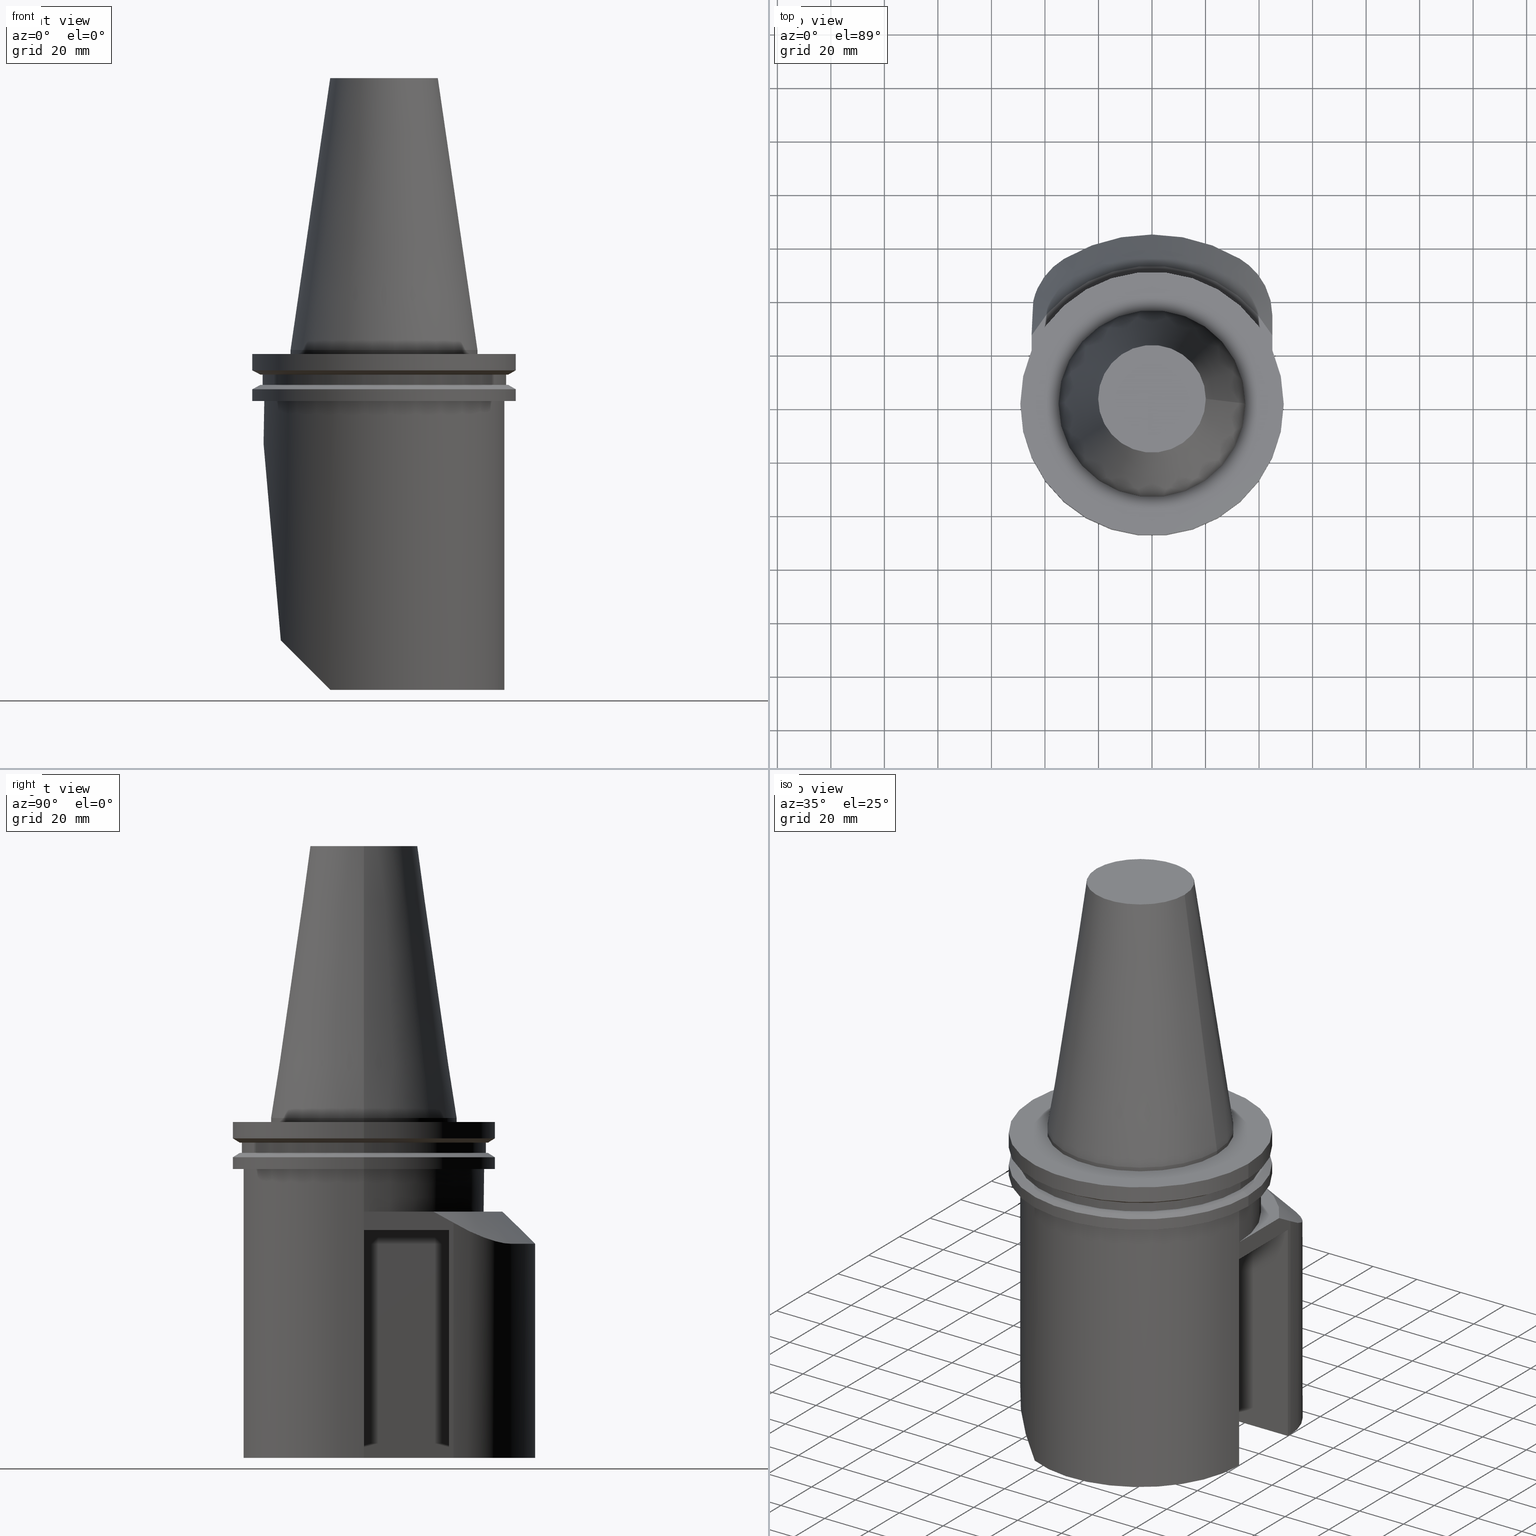
[diagram: canonical four-view strip — front | top / right | iso, engineering-drawing reading convention]
A machine part, canonical four-view strip (front | top / right | iso — engineering-drawing reading convention). The complete STEP part file that produces these views, byte-faithful:
ISO-10303-21;
HEADER;
FILE_DESCRIPTION((''),'1');
FILE_NAME('V:/01_Dxf_Field-HP\X2\FF71FF6FFF8CFF9F5916\X0\2013/BIGKAISER\X2\FF76FF80FF9BFF78FF9E63B28F095206\X0\_BKUS_201803/BCV50Y-180-BH/BCV50Y-180-BH1.250R-5.stp','2018-03-14T07:29:59',(''),(''),'Spatial Interop R21 SP3','Kubotek KeyCreator 2011 V10.0.2 (22737)',' ');
FILE_SCHEMA(('automotive_design'));
ENDSEC;
DATA;
#1=MECHANICAL_DESIGN_GEOMETRIC_PRESENTATION_REPRESENTATION(' ',(#10,#11,#12,#13,#14,#15,#16,#17,#18,#19,#20,#21,#22,#23,#24,#25,#26,#27,#28,#29,#30,#31,#32,#33,#34,#35,#36,#37,#38,#39,#40,#41,#42,#43,#44,#45,#46,#47,#48,#49,#50,#51,#52,#53,#54,#55,#56,#57,#58,#59,#60,#61,#62,#63,#64,#65,#66,#67,#68,#69,#70,#71,#72,#73,#74,#75,#76,#77,#78,#79,#80,#81,#82,#83),#6);
#2=PRODUCT_DEFINITION_CONTEXT('',#84,'design');
#3=APPLICATION_PROTOCOL_DEFINITION('INTERNATIONAL STANDARD','automotive_design',1994,#84);
#4=PRODUCT_CATEGORY_RELATIONSHIP('NONE','NONE',#85,#86);
#5=SHAPE_DEFINITION_REPRESENTATION(#87,#88);
#6= (GEOMETRIC_REPRESENTATION_CONTEXT(3)GLOBAL_UNCERTAINTY_ASSIGNED_CONTEXT((#91))GLOBAL_UNIT_ASSIGNED_CONTEXT((#93,#94,#95))REPRESENTATION_CONTEXT('NONE','WORKSPACE'));
#10=STYLED_ITEM('',(#97,#98),#99);
#11=STYLED_ITEM('',(#100),#101);
#12=STYLED_ITEM('',(#102),#103);
#13=STYLED_ITEM('',(#104),#105);
#14=STYLED_ITEM('',(#106,#107),#108);
#15=STYLED_ITEM('',(#109),#110);
#16=STYLED_ITEM('',(#111),#112);
#17=STYLED_ITEM('',(#113),#114);
#18=STYLED_ITEM('',(#115,#116),#117);
#19=STYLED_ITEM('',(#118,#119),#120);
#20=STYLED_ITEM('',(#121,#122),#123);
#21=STYLED_ITEM('',(#124),#125);
#22=STYLED_ITEM('',(#126),#127);
#23=STYLED_ITEM('',(#128),#129);
#24=STYLED_ITEM('',(#130),#131);
#25=STYLED_ITEM('',(#132),#133);
#26=STYLED_ITEM('',(#134,#135),#136);
#27=STYLED_ITEM('',(#137),#138);
#28=STYLED_ITEM('',(#139),#140);
#29=STYLED_ITEM('',(#141),#142);
#30=STYLED_ITEM('',(#143),#144);
#31=STYLED_ITEM('',(#145),#146);
#32=STYLED_ITEM('',(#147),#148);
#33=STYLED_ITEM('',(#149),#150);
#34=STYLED_ITEM('',(#151),#152);
#35=STYLED_ITEM('',(#153,#154),#155);
#36=STYLED_ITEM('',(#156),#157);
#37=STYLED_ITEM('',(#158,#159),#160);
#38=STYLED_ITEM('',(#161,#162),#163);
#39=STYLED_ITEM('',(#164),#165);
#40=STYLED_ITEM('',(#166,#167),#168);
#41=STYLED_ITEM('',(#169,#170),#171);
#42=STYLED_ITEM('',(#172,#173),#174);
#43=STYLED_ITEM('',(#175,#176),#177);
#44=STYLED_ITEM('',(#178),#179);
#45=STYLED_ITEM('',(#180),#181);
#46=STYLED_ITEM('',(#182,#183),#184);
#47=STYLED_ITEM('',(#185),#186);
#48=STYLED_ITEM('',(#187),#188);
#49=STYLED_ITEM('',(#189),#190);
#50=STYLED_ITEM('',(#191),#192);
#51=STYLED_ITEM('',(#193),#194);
#52=STYLED_ITEM('',(#195),#196);
#53=STYLED_ITEM('',(#197,#198),#199);
#54=STYLED_ITEM('',(#200,#201),#202);
#55=STYLED_ITEM('',(#203),#204);
#56=STYLED_ITEM('',(#205,#206),#207);
#57=STYLED_ITEM('',(#208),#209);
#58=STYLED_ITEM('',(#210,#211),#212);
#59=STYLED_ITEM('',(#213,#214),#215);
#60=STYLED_ITEM('',(#216),#217);
#61=STYLED_ITEM('',(#218,#219),#220);
#62=STYLED_ITEM('',(#221),#222);
#63=STYLED_ITEM('',(#223),#224);
#64=STYLED_ITEM('',(#225),#226);
#65=STYLED_ITEM('',(#227),#228);
#66=STYLED_ITEM('',(#229,#230),#231);
#67=STYLED_ITEM('',(#232),#233);
#68=STYLED_ITEM('',(#234,#235),#236);
#69=STYLED_ITEM('',(#237),#238);
#70=STYLED_ITEM('',(#239),#240);
#71=STYLED_ITEM('',(#241,#242),#243);
#72=STYLED_ITEM('',(#244),#245);
#73=STYLED_ITEM('',(#246,#247),#248);
#74=STYLED_ITEM('',(#249,#250),#251);
#75=STYLED_ITEM('',(#252),#253);
#76=STYLED_ITEM('',(#254),#255);
#77=STYLED_ITEM('',(#256),#257);
#78=STYLED_ITEM('',(#258,#259),#260);
#79=STYLED_ITEM('',(#261,#262),#263);
#80=STYLED_ITEM('',(#264),#265);
#81=STYLED_ITEM('',(#266),#267);
#82=STYLED_ITEM('',(#268),#269);
#83=STYLED_ITEM('',(#270),#271);
#84=APPLICATION_CONTEXT(' ');
#85=PRODUCT_CATEGORY('part','NONE');
#86=PRODUCT_RELATED_PRODUCT_CATEGORY('detail',' ',(#272));
#87=PRODUCT_DEFINITION_SHAPE('NONE','NONE',#273);
#88=ADVANCED_BREP_SHAPE_REPRESENTATION('Unnamed[1]',(#243,#274),#6);
#91=UNCERTAINTY_MEASURE_WITH_UNIT(LENGTH_MEASURE(1.0E-006),#93,'','');
#93= (CONVERSION_BASED_UNIT('MILLIMETRE',#277)LENGTH_UNIT()NAMED_UNIT(#280));
#94= (NAMED_UNIT(#282)PLANE_ANGLE_UNIT()SI_UNIT($,.RADIAN.));
#95= (NAMED_UNIT(#282)SOLID_ANGLE_UNIT()SI_UNIT($,.STERADIAN.));
#97=PRESENTATION_STYLE_ASSIGNMENT((#288));
#98=PRESENTATION_STYLE_ASSIGNMENT((#289));
#99=ADVANCED_FACE('Unnamed[1]',(#290,#291),#292,.T.);
#100=PRESENTATION_STYLE_ASSIGNMENT((#293));
#101=EDGE_CURVE('Unnamed[1]',#294,#295,#296,.T.);
#102=PRESENTATION_STYLE_ASSIGNMENT((#297));
#103=EDGE_CURVE('Unnamed[1]',#298,#299,#300,.T.);
#104=PRESENTATION_STYLE_ASSIGNMENT((#301));
#105=EDGE_CURVE('Unnamed[1]',#302,#303,#304,.T.);
#106=PRESENTATION_STYLE_ASSIGNMENT((#305));
#107=PRESENTATION_STYLE_ASSIGNMENT((#306));
#108=ADVANCED_FACE('Unnamed[1]',(#307),#308,.F.);
#109=PRESENTATION_STYLE_ASSIGNMENT((#309));
#110=EDGE_CURVE('Unnamed[1]',#310,#310,#311,.T.);
#111=PRESENTATION_STYLE_ASSIGNMENT((#312));
#112=EDGE_CURVE('Unnamed[1]',#313,#313,#314,.T.);
#113=PRESENTATION_STYLE_ASSIGNMENT((#315));
#114=EDGE_CURVE('Unnamed[1]',#316,#317,#318,.T.);
#115=PRESENTATION_STYLE_ASSIGNMENT((#319));
#116=PRESENTATION_STYLE_ASSIGNMENT((#320));
#117=ADVANCED_FACE('Unnamed[1]',(#321),#322,.T.);
#118=PRESENTATION_STYLE_ASSIGNMENT((#323));
#119=PRESENTATION_STYLE_ASSIGNMENT((#324));
#120=ADVANCED_FACE('Unnamed[1]',(#325,#326),#327,.T.);
#121=PRESENTATION_STYLE_ASSIGNMENT((#328));
#122=PRESENTATION_STYLE_ASSIGNMENT((#329));
#123=ADVANCED_FACE('Unnamed[1]',(#330),#331,.F.);
#124=PRESENTATION_STYLE_ASSIGNMENT((#332));
#125=EDGE_CURVE('Unnamed[1]',#333,#334,#335,.T.);
#126=PRESENTATION_STYLE_ASSIGNMENT((#336));
#127=EDGE_CURVE('Unnamed[1]',#337,#338,#339,.T.);
#128=PRESENTATION_STYLE_ASSIGNMENT((#340));
#129=EDGE_CURVE('Unnamed[1]',#341,#342,#343,.T.);
#130=PRESENTATION_STYLE_ASSIGNMENT((#344));
#131=EDGE_CURVE('Unnamed[1]',#338,#299,#345,.T.);
#132=PRESENTATION_STYLE_ASSIGNMENT((#346));
#133=EDGE_CURVE('Unnamed[1]',#347,#347,#348,.T.);
#134=PRESENTATION_STYLE_ASSIGNMENT((#349));
#135=PRESENTATION_STYLE_ASSIGNMENT((#350));
#136=ADVANCED_FACE('Unnamed[1]',(#351,#352),#353,.T.);
#137=PRESENTATION_STYLE_ASSIGNMENT((#354));
#138=EDGE_CURVE('Unnamed[1]',#333,#316,#355,.T.);
#139=PRESENTATION_STYLE_ASSIGNMENT((#356));
#140=EDGE_CURVE('Unnamed[1]',#357,#357,#358,.T.);
#141=PRESENTATION_STYLE_ASSIGNMENT((#359));
#142=EDGE_CURVE('Unnamed[1]',#360,#361,#362,.T.);
#143=PRESENTATION_STYLE_ASSIGNMENT((#363));
#144=EDGE_CURVE('Unnamed[1]',#364,#364,#365,.T.);
#145=PRESENTATION_STYLE_ASSIGNMENT((#366));
#146=EDGE_CURVE('Unnamed[1]',#367,#368,#369,.T.);
#147=PRESENTATION_STYLE_ASSIGNMENT((#370));
#148=EDGE_CURVE('Unnamed[1]',#371,#371,#372,.T.);
#149=PRESENTATION_STYLE_ASSIGNMENT((#373));
#150=EDGE_CURVE('Unnamed[1]',#374,#374,#375,.T.);
#151=PRESENTATION_STYLE_ASSIGNMENT((#376));
#152=EDGE_CURVE('Unnamed[1]',#377,#302,#378,.T.);
#153=PRESENTATION_STYLE_ASSIGNMENT((#379));
#154=PRESENTATION_STYLE_ASSIGNMENT((#380));
#155=ADVANCED_FACE('Unnamed[1]',(#381,#382),#383,.T.);
#156=PRESENTATION_STYLE_ASSIGNMENT((#384));
#157=EDGE_CURVE('Unnamed[1]',#303,#298,#385,.T.);
#158=PRESENTATION_STYLE_ASSIGNMENT((#386));
#159=PRESENTATION_STYLE_ASSIGNMENT((#387));
#160=ADVANCED_FACE('Unnamed[1]',(#388),#389,.T.);
#161=PRESENTATION_STYLE_ASSIGNMENT((#390));
#162=PRESENTATION_STYLE_ASSIGNMENT((#391));
#163=ADVANCED_FACE('Unnamed[1]',(#392,#393),#394,.T.);
#164=PRESENTATION_STYLE_ASSIGNMENT((#395));
#165=EDGE_CURVE('Unnamed[1]',#341,#295,#396,.T.);
#166=PRESENTATION_STYLE_ASSIGNMENT((#397));
#167=PRESENTATION_STYLE_ASSIGNMENT((#398));
#168=ADVANCED_FACE('Unnamed[1]',(#399,#400),#401,.T.);
#169=PRESENTATION_STYLE_ASSIGNMENT((#402));
#170=PRESENTATION_STYLE_ASSIGNMENT((#403));
#171=ADVANCED_FACE('Unnamed[1]',(#404,#405),#406,.T.);
#172=PRESENTATION_STYLE_ASSIGNMENT((#407));
#173=PRESENTATION_STYLE_ASSIGNMENT((#408));
#174=ADVANCED_FACE('Unnamed[1]',(#409),#410,.T.);
#175=PRESENTATION_STYLE_ASSIGNMENT((#411));
#176=PRESENTATION_STYLE_ASSIGNMENT((#412));
#177=ADVANCED_FACE('Unnamed[1]',(#413,#414),#415,.T.);
#178=PRESENTATION_STYLE_ASSIGNMENT((#416));
#179=EDGE_CURVE('Unnamed[1]',#417,#417,#418,.T.);
#180=PRESENTATION_STYLE_ASSIGNMENT((#419));
#181=EDGE_CURVE('Unnamed[1]',#294,#420,#421,.T.);
#182=PRESENTATION_STYLE_ASSIGNMENT((#422));
#183=PRESENTATION_STYLE_ASSIGNMENT((#423));
#184=ADVANCED_FACE('Unnamed[1]',(#424),#425,.T.);
#185=PRESENTATION_STYLE_ASSIGNMENT((#426));
#186=EDGE_CURVE('Unnamed[1]',#317,#334,#427,.T.);
#187=PRESENTATION_STYLE_ASSIGNMENT((#428));
#188=EDGE_CURVE('Unnamed[1]',#295,#429,#430,.T.);
#189=PRESENTATION_STYLE_ASSIGNMENT((#431));
#190=EDGE_CURVE('Unnamed[1]',#303,#367,#432,.T.);
#191=PRESENTATION_STYLE_ASSIGNMENT((#433));
#192=EDGE_CURVE('Unnamed[1]',#303,#317,#434,.T.);
#193=PRESENTATION_STYLE_ASSIGNMENT((#435));
#194=EDGE_CURVE('Unnamed[1]',#302,#436,#437,.T.);
#195=PRESENTATION_STYLE_ASSIGNMENT((#438));
#196=EDGE_CURVE('Unnamed[1]',#361,#341,#439,.T.);
#197=PRESENTATION_STYLE_ASSIGNMENT((#440));
#198=PRESENTATION_STYLE_ASSIGNMENT((#441));
#199=ADVANCED_FACE('Unnamed[1]',(#442),#443,.T.);
#200=PRESENTATION_STYLE_ASSIGNMENT((#444));
#201=PRESENTATION_STYLE_ASSIGNMENT((#445));
#202=ADVANCED_FACE('Unnamed[1]',(#446,#447),#448,.T.);
#203=PRESENTATION_STYLE_ASSIGNMENT((#449));
#204=EDGE_CURVE('Unnamed[1]',#334,#298,#450,.T.);
#205=PRESENTATION_STYLE_ASSIGNMENT((#451));
#206=PRESENTATION_STYLE_ASSIGNMENT((#452));
#207=ADVANCED_FACE('Unnamed[1]',(#453),#454,.T.);
#208=PRESENTATION_STYLE_ASSIGNMENT((#455));
#209=EDGE_CURVE('Unnamed[1]',#316,#367,#456,.T.);
#210=PRESENTATION_STYLE_ASSIGNMENT((#457));
#211=PRESENTATION_STYLE_ASSIGNMENT((#458));
#212=ADVANCED_FACE('Unnamed[1]',(#459),#460,.F.);
#213=PRESENTATION_STYLE_ASSIGNMENT((#461));
#214=PRESENTATION_STYLE_ASSIGNMENT((#462));
#215=ADVANCED_FACE('Unnamed[1]',(#463),#464,.T.);
#216=PRESENTATION_STYLE_ASSIGNMENT((#465));
#217=EDGE_CURVE('Unnamed[1]',#338,#466,#467,.T.);
#218=PRESENTATION_STYLE_ASSIGNMENT((#468));
#219=PRESENTATION_STYLE_ASSIGNMENT((#469));
#220=ADVANCED_FACE('Unnamed[1]',(#470,#471),#472,.T.);
#221=PRESENTATION_STYLE_ASSIGNMENT((#473));
#222=EDGE_CURVE('Unnamed[1]',#436,#466,#474,.T.);
#223=PRESENTATION_STYLE_ASSIGNMENT((#475));
#224=EDGE_CURVE('Unnamed[1]',#466,#420,#476,.T.);
#225=PRESENTATION_STYLE_ASSIGNMENT((#477));
#226=EDGE_CURVE('Unnamed[1]',#377,#342,#478,.T.);
#227=PRESENTATION_STYLE_ASSIGNMENT((#479));
#228=EDGE_CURVE('Unnamed[1]',#480,#480,#481,.T.);
#229=PRESENTATION_STYLE_ASSIGNMENT((#482));
#230=PRESENTATION_STYLE_ASSIGNMENT((#483));
#231=ADVANCED_FACE('Unnamed[1]',(#484),#485,.F.);
#232=PRESENTATION_STYLE_ASSIGNMENT((#486));
#233=EDGE_CURVE('Unnamed[1]',#487,#487,#488,.T.);
#234=PRESENTATION_STYLE_ASSIGNMENT((#489));
#235=PRESENTATION_STYLE_ASSIGNMENT((#490));
#236=ADVANCED_FACE('Unnamed[1]',(#491),#492,.F.);
#237=PRESENTATION_STYLE_ASSIGNMENT((#493));
#238=EDGE_CURVE('Unnamed[1]',#429,#377,#494,.T.);
#239=PRESENTATION_STYLE_ASSIGNMENT((#495));
#240=EDGE_CURVE('Unnamed[1]',#496,#496,#497,.T.);
#241=PRESENTATION_STYLE_ASSIGNMENT((#498));
#242=PRESENTATION_STYLE_ASSIGNMENT((#499));
#243=MANIFOLD_SOLID_BREP('Unnamed[1]',#500);
#244=PRESENTATION_STYLE_ASSIGNMENT((#501));
#245=EDGE_CURVE('Unnamed[1]',#502,#502,#503,.T.);
#246=PRESENTATION_STYLE_ASSIGNMENT((#504));
#247=PRESENTATION_STYLE_ASSIGNMENT((#505));
#248=ADVANCED_FACE('Unnamed[1]',(#506,#507),#508,.T.);
#249=PRESENTATION_STYLE_ASSIGNMENT((#509));
#250=PRESENTATION_STYLE_ASSIGNMENT((#510));
#251=ADVANCED_FACE('Unnamed[1]',(#511,#512),#513,.T.);
#252=PRESENTATION_STYLE_ASSIGNMENT((#514));
#253=EDGE_CURVE('Unnamed[1]',#299,#333,#515,.T.);
#254=PRESENTATION_STYLE_ASSIGNMENT((#516));
#255=EDGE_CURVE('Unnamed[1]',#429,#436,#517,.T.);
#256=PRESENTATION_STYLE_ASSIGNMENT((#518));
#257=EDGE_CURVE('Unnamed[1]',#337,#420,#519,.T.);
#258=PRESENTATION_STYLE_ASSIGNMENT((#520));
#259=PRESENTATION_STYLE_ASSIGNMENT((#521));
#260=ADVANCED_FACE('Unnamed[1]',(#522),#523,.F.);
#261=PRESENTATION_STYLE_ASSIGNMENT((#524));
#262=PRESENTATION_STYLE_ASSIGNMENT((#525));
#263=ADVANCED_FACE('Unnamed[1]',(#526),#527,.T.);
#264=PRESENTATION_STYLE_ASSIGNMENT((#528));
#265=EDGE_CURVE('Unnamed[1]',#368,#360,#529,.T.);
#266=PRESENTATION_STYLE_ASSIGNMENT((#530));
#267=EDGE_CURVE('Unnamed[1]',#360,#337,#531,.T.);
#268=PRESENTATION_STYLE_ASSIGNMENT((#532));
#269=EDGE_CURVE('Unnamed[1]',#342,#368,#533,.T.);
#270=PRESENTATION_STYLE_ASSIGNMENT((#534));
#271=EDGE_CURVE('Unnamed[1]',#361,#294,#535,.T.);
#272=PRODUCT('Unnamed[1]','Unnamed[1]','PART-Unnamed[1]-DESC',(#536));
#273=PRODUCT_DEFINITION('NONE','NONE',#537,#2);
#274=AXIS2_PLACEMENT_3D('',#538,#539,#540);
#277=LENGTH_MEASURE_WITH_UNIT(LENGTH_MEASURE(1.0),#541);
#280=DIMENSIONAL_EXPONENTS(1.0,0.0,0.0,0.0,0.0,0.0,0.0);
#282=DIMENSIONAL_EXPONENTS(0.0,0.0,0.0,0.0,0.0,0.0,0.0);
#288=SURFACE_STYLE_USAGE(.BOTH.,#542);
#289=CURVE_STYLE('',#543,POSITIVE_LENGTH_MEASURE(1000.0),#544);
#290=FACE_BOUND('',#545,.T.);
#291=FACE_OUTER_BOUND('',#546,.T.);
#292=PLANE('',#547);
#293=CURVE_STYLE('',#548,POSITIVE_LENGTH_MEASURE(1000.0),#549);
#294=VERTEX_POINT('',#550);
#295=VERTEX_POINT('',#551);
#296=B_SPLINE_CURVE_WITH_KNOTS('',3,(#552,#553,#554,#555,#556,#557,#558,#559,#560,#561,#562,#563,#564,#565,#566,#567,#568,#569,#570,#571,#572,#573),.UNSPECIFIED.,.F.,.F.,(4,2,2,2,2,2,2,2,2,2,4),(32.8394194779186,34.7964011372272,36.7533827965358,38.7103644558444,42.6243277744616,46.5382910930788,50.452254411696,52.8448228945408,55.2373913773856,60.0225283430752,64.8076653087648),.UNSPECIFIED.);
#297=CURVE_STYLE('',#574,POSITIVE_LENGTH_MEASURE(1000.0),#575);
#298=VERTEX_POINT('',#576);
#299=VERTEX_POINT('',#577);
#300=LINE('',#578,#579);
#301=CURVE_STYLE('',#580,POSITIVE_LENGTH_MEASURE(1000.0),#581);
#302=VERTEX_POINT('',#582);
#303=VERTEX_POINT('',#583);
#304=LINE('',#584,#585);
#305=SURFACE_STYLE_USAGE(.BOTH.,#586);
#306=CURVE_STYLE('',#587,POSITIVE_LENGTH_MEASURE(1000.0),#588);
#307=FACE_OUTER_BOUND('',#589,.T.);
#308=PLANE('',#590);
#309=CURVE_STYLE('',#591,POSITIVE_LENGTH_MEASURE(1000.0),#592);
#310=VERTEX_POINT('',#593);
#311=CIRCLE('',#594,45.645);
#312=CURVE_STYLE('',#595,POSITIVE_LENGTH_MEASURE(1000.0),#596);
#313=VERTEX_POINT('',#597);
#314=CIRCLE('',#598,49.2125);
#315=CURVE_STYLE('',#599,POSITIVE_LENGTH_MEASURE(1000.0),#600);
#316=VERTEX_POINT('',#601);
#317=VERTEX_POINT('',#602);
#318=LINE('',#603,#604);
#319=SURFACE_STYLE_USAGE(.BOTH.,#605);
#320=CURVE_STYLE('',#606,POSITIVE_LENGTH_MEASURE(1000.0),#607);
#321=FACE_OUTER_BOUND('',#608,.T.);
#322=CYLINDRICAL_SURFACE('',#609,25.0);
#323=SURFACE_STYLE_USAGE(.BOTH.,#610);
#324=CURVE_STYLE('',#611,POSITIVE_LENGTH_MEASURE(1000.0),#612);
#325=FACE_BOUND('',#613,.T.);
#326=FACE_OUTER_BOUND('',#614,.T.);
#327=PLANE('',#615);
#328=SURFACE_STYLE_USAGE(.BOTH.,#616);
#329=CURVE_STYLE('',#617,POSITIVE_LENGTH_MEASURE(1000.0),#618);
#330=FACE_OUTER_BOUND('',#619,.T.);
#331=PLANE('',#620);
#332=CURVE_STYLE('',#621,POSITIVE_LENGTH_MEASURE(1000.0),#622);
#333=VERTEX_POINT('',#623);
#334=VERTEX_POINT('',#624);
#335=LINE('',#625,#626);
#336=CURVE_STYLE('',#627,POSITIVE_LENGTH_MEASURE(1000.0),#628);
#337=VERTEX_POINT('',#629);
#338=VERTEX_POINT('',#630);
#339=CIRCLE('',#631,25.0);
#340=CURVE_STYLE('',#632,POSITIVE_LENGTH_MEASURE(1000.0),#633);
#341=VERTEX_POINT('',#634);
#342=VERTEX_POINT('',#635);
#343=LINE('',#636,#637);
#344=CURVE_STYLE('',#638,POSITIVE_LENGTH_MEASURE(1000.0),#639);
#345=LINE('',#640,#641);
#346=CURVE_STYLE('',#642,POSITIVE_LENGTH_MEASURE(1000.0),#643);
#347=VERTEX_POINT('',#644);
#348=CIRCLE('',#645,45.645);
#349=SURFACE_STYLE_USAGE(.BOTH.,#646);
#350=CURVE_STYLE('',#647,POSITIVE_LENGTH_MEASURE(1000.0),#648);
#351=FACE_OUTER_BOUND('',#649,.T.);
#352=FACE_BOUND('',#650,.T.);
#353=PLANE('',#651);
#354=CURVE_STYLE('',#652,POSITIVE_LENGTH_MEASURE(1000.0),#653);
#355=LINE('',#654,#655);
#356=CURVE_STYLE('',#656,POSITIVE_LENGTH_MEASURE(1000.0),#657);
#357=VERTEX_POINT('',#658);
#358=CIRCLE('',#659,34.925);
#359=CURVE_STYLE('',#660,POSITIVE_LENGTH_MEASURE(1000.0),#661);
#360=VERTEX_POINT('',#662);
#361=VERTEX_POINT('',#663);
#362=ELLIPSE('',#664,90.5096679918774,63.9999999999996);
#363=CURVE_STYLE('',#665,POSITIVE_LENGTH_MEASURE(1000.0),#666);
#364=VERTEX_POINT('',#667);
#365=CIRCLE('',#668,46.43053755);
#366=CURVE_STYLE('',#669,POSITIVE_LENGTH_MEASURE(1000.0),#670);
#367=VERTEX_POINT('',#671);
#368=VERTEX_POINT('',#672);
#369=CIRCLE('',#673,45.0);
#370=CURVE_STYLE('',#674,POSITIVE_LENGTH_MEASURE(1000.0),#675);
#371=VERTEX_POINT('',#676);
#372=CIRCLE('',#677,49.2125);
#373=CURVE_STYLE('',#678,POSITIVE_LENGTH_MEASURE(1000.0),#679);
#374=VERTEX_POINT('',#680);
#375=CIRCLE('',#681,45.0);
#376=CURVE_STYLE('',#682,POSITIVE_LENGTH_MEASURE(1000.0),#683);
#377=VERTEX_POINT('',#684);
#378=CIRCLE('',#685,45.0);
#379=SURFACE_STYLE_USAGE(.BOTH.,#686);
#380=CURVE_STYLE('',#687,POSITIVE_LENGTH_MEASURE(1000.0),#688);
#381=FACE_BOUND('',#689,.T.);
#382=FACE_BOUND('',#690,.T.);
#383=CONICAL_SURFACE('',#691,47.821518775,1.04719755103024);
#384=CURVE_STYLE('',#692,POSITIVE_LENGTH_MEASURE(1000.0),#693);
#385=LINE('',#694,#695);
#386=SURFACE_STYLE_USAGE(.BOTH.,#696);
#387=CURVE_STYLE('',#697,POSITIVE_LENGTH_MEASURE(1000.0),#698);
#388=FACE_OUTER_BOUND('',#699,.T.);
#389=PLANE('',#700);
#390=SURFACE_STYLE_USAGE(.BOTH.,#701);
#391=CURVE_STYLE('',#702,POSITIVE_LENGTH_MEASURE(1000.0),#703);
#392=FACE_BOUND('',#704,.T.);
#393=FACE_BOUND('',#705,.T.);
#394=CYLINDRICAL_SURFACE('',#706,45.645);
#395=CURVE_STYLE('',#707,POSITIVE_LENGTH_MEASURE(1000.0),#708);
#396=ELLIPSE('',#709,286.842831141762,25.0);
#397=SURFACE_STYLE_USAGE(.BOTH.,#710);
#398=CURVE_STYLE('',#711,POSITIVE_LENGTH_MEASURE(1000.0),#712);
#399=FACE_BOUND('',#713,.T.);
#400=FACE_BOUND('',#714,.T.);
#401=CYLINDRICAL_SURFACE('',#715,45.0);
#402=SURFACE_STYLE_USAGE(.BOTH.,#716);
#403=CURVE_STYLE('',#717,POSITIVE_LENGTH_MEASURE(1000.0),#718);
#404=FACE_OUTER_BOUND('',#719,.T.);
#405=FACE_BOUND('',#720,.T.);
#406=PLANE('',#721);
#407=SURFACE_STYLE_USAGE(.BOTH.,#722);
#408=CURVE_STYLE('',#723,POSITIVE_LENGTH_MEASURE(1000.0),#724);
#409=FACE_OUTER_BOUND('',#725,.T.);
#410=CYLINDRICAL_SURFACE('',#726,63.9999999999996);
#411=SURFACE_STYLE_USAGE(.BOTH.,#727);
#412=CURVE_STYLE('',#728,POSITIVE_LENGTH_MEASURE(1000.0),#729);
#413=FACE_BOUND('',#730,.T.);
#414=FACE_BOUND('',#731,.T.);
#415=CONICAL_SURFACE('',#732,47.821518775,1.04719755103024);
#416=CURVE_STYLE('',#733,POSITIVE_LENGTH_MEASURE(1000.0),#734);
#417=VERTEX_POINT('',#735);
#418=CIRCLE('',#736,34.925);
#419=CURVE_STYLE('',#737,POSITIVE_LENGTH_MEASURE(1000.0),#738);
#420=VERTEX_POINT('',#739);
#421=CIRCLE('',#740,63.9999999999996);
#422=SURFACE_STYLE_USAGE(.BOTH.,#741);
#423=CURVE_STYLE('',#742,POSITIVE_LENGTH_MEASURE(1000.0),#743);
#424=FACE_OUTER_BOUND('',#744,.T.);
#425=CYLINDRICAL_SURFACE('',#745,25.0);
#426=CURVE_STYLE('',#746,POSITIVE_LENGTH_MEASURE(1000.0),#747);
#427=LINE('',#748,#749);
#428=CURVE_STYLE('',#750,POSITIVE_LENGTH_MEASURE(1000.0),#751);
#429=VERTEX_POINT('',#752);
#430=(B_SPLINE_CURVE(2,(#754,#755,#756),.UNSPECIFIED.,.F.,.F.)B_SPLINE_CURVE_WITH_KNOTS((3,3),(0.0,23.7680413790492),.UNSPECIFIED.)RATIONAL_B_SPLINE_CURVE((1.0,1.01384614119174,1.0))BOUNDED_CURVE()REPRESENTATION_ITEM('')GEOMETRIC_REPRESENTATION_ITEM()CURVE());
#431=CURVE_STYLE('',#763,POSITIVE_LENGTH_MEASURE(1000.0),#764);
#432=LINE('',#765,#766);
#433=CURVE_STYLE('',#767,POSITIVE_LENGTH_MEASURE(1000.0),#768);
#434=LINE('',#769,#770);
#435=CURVE_STYLE('',#771,POSITIVE_LENGTH_MEASURE(1000.0),#772);
#436=VERTEX_POINT('',#773);
#437=LINE('',#774,#775);
#438=CURVE_STYLE('',#776,POSITIVE_LENGTH_MEASURE(1000.0),#777);
#439=ELLIPSE('',#778,35.3553390593274,25.0);
#440=SURFACE_STYLE_USAGE(.BOTH.,#779);
#441=CURVE_STYLE('',#780,POSITIVE_LENGTH_MEASURE(1000.0),#781);
#442=FACE_OUTER_BOUND('',#782,.T.);
#443=PLANE('',#783);
#444=SURFACE_STYLE_USAGE(.BOTH.,#784);
#445=CURVE_STYLE('',#785,POSITIVE_LENGTH_MEASURE(1000.0),#786);
#446=FACE_BOUND('',#787,.T.);
#447=FACE_BOUND('',#788,.T.);
#448=CYLINDRICAL_SURFACE('',#789,34.925);
#449=CURVE_STYLE('',#790,POSITIVE_LENGTH_MEASURE(1000.0),#791);
#450=LINE('',#792,#793);
#451=SURFACE_STYLE_USAGE(.BOTH.,#794);
#452=CURVE_STYLE('',#795,POSITIVE_LENGTH_MEASURE(1000.0),#796);
#453=FACE_OUTER_BOUND('',#797,.T.);
#454=PLANE('',#798);
#455=CURVE_STYLE('',#799,POSITIVE_LENGTH_MEASURE(1000.0),#800);
#456=LINE('',#801,#802);
#457=SURFACE_STYLE_USAGE(.BOTH.,#803);
#458=CURVE_STYLE('',#804,POSITIVE_LENGTH_MEASURE(1000.0),#805);
#459=FACE_OUTER_BOUND('',#806,.T.);
#460=PLANE('',#807);
#461=SURFACE_STYLE_USAGE(.BOTH.,#808);
#462=CURVE_STYLE('',#809,POSITIVE_LENGTH_MEASURE(1000.0),#810);
#463=FACE_OUTER_BOUND('',#811,.T.);
#464=PLANE('',#812);
#465=CURVE_STYLE('',#813,POSITIVE_LENGTH_MEASURE(1000.0),#814);
#466=VERTEX_POINT('',#815);
#467=LINE('',#816,#817);
#468=SURFACE_STYLE_USAGE(.BOTH.,#818);
#469=CURVE_STYLE('',#819,POSITIVE_LENGTH_MEASURE(1000.0),#820);
#470=FACE_BOUND('',#821,.T.);
#471=FACE_BOUND('',#822,.T.);
#472=CONICAL_SURFACE('',#823,27.5166666648609,0.144812498273746);
#473=CURVE_STYLE('',#824,POSITIVE_LENGTH_MEASURE(1000.0),#825);
#474=(B_SPLINE_CURVE(2,(#827,#828,#829),.UNSPECIFIED.,.F.,.F.)B_SPLINE_CURVE_WITH_KNOTS((3,3),(0.0,22.8709444091252),.UNSPECIFIED.)RATIONAL_B_SPLINE_CURVE((1.0,1.01436146243057,1.0))BOUNDED_CURVE()REPRESENTATION_ITEM('')GEOMETRIC_REPRESENTATION_ITEM()CURVE());
#475=CURVE_STYLE('',#836,POSITIVE_LENGTH_MEASURE(1000.0),#837);
#476=B_SPLINE_CURVE_WITH_KNOTS('',3,(#838,#839,#840,#841,#842,#843,#844,#845,#846,#847,#848,#849,#850,#851,#852,#853,#854,#855,#856,#857,#858,#859),.UNSPECIFIED.,.F.,.F.,(4,2,2,2,2,2,2,2,2,2,4),(4.78513696568953,9.57027393137906,14.3554108970686,16.7479793799133,19.1405478627581,23.0545111813752,26.9684744999923,30.8824378186094,32.8394194779179,34.7964011372265,36.7533827965351),.UNSPECIFIED.);
#477=CURVE_STYLE('',#860,POSITIVE_LENGTH_MEASURE(1000.0),#861);
#478=ELLIPSE('',#862,516.317096055151,45.0);
#479=CURVE_STYLE('',#863,POSITIVE_LENGTH_MEASURE(1000.0),#864);
#480=VERTEX_POINT('',#865);
#481=CIRCLE('',#866,49.2125);
#482=SURFACE_STYLE_USAGE(.BOTH.,#867);
#483=CURVE_STYLE('',#868,POSITIVE_LENGTH_MEASURE(1000.0),#869);
#484=FACE_OUTER_BOUND('',#870,.T.);
#485=PLANE('',#871);
#486=CURVE_STYLE('',#872,POSITIVE_LENGTH_MEASURE(1000.0),#873);
#487=VERTEX_POINT('',#874);
#488=CIRCLE('',#875,46.43053755);
#489=SURFACE_STYLE_USAGE(.BOTH.,#876);
#490=CURVE_STYLE('',#877,POSITIVE_LENGTH_MEASURE(1000.0),#878);
#491=FACE_OUTER_BOUND('',#879,.T.);
#492=PLANE('',#880);
#493=CURVE_STYLE('',#881,POSITIVE_LENGTH_MEASURE(1000.0),#882);
#494=LINE('',#883,#884);
#495=CURVE_STYLE('',#885,POSITIVE_LENGTH_MEASURE(1000.0),#886);
#496=VERTEX_POINT('',#887);
#497=CIRCLE('',#888,20.1083333297217);
#498=SURFACE_STYLE_USAGE(.BOTH.,#889);
#499=CURVE_STYLE('',#890,POSITIVE_LENGTH_MEASURE(1000.0),#891);
#500=CLOSED_SHELL('',(#108,#212,#123,#199,#260,#207,#236,#231,#174,#117,#263,#184,#168,#120,#215,#220,#202,#171,#248,#155,#99,#163,#136,#177,#251,#160));
#501=CURVE_STYLE('',#892,POSITIVE_LENGTH_MEASURE(1000.0),#893);
#502=VERTEX_POINT('',#894);
#503=CIRCLE('',#895,49.2125);
#504=SURFACE_STYLE_USAGE(.BOTH.,#896);
#505=CURVE_STYLE('',#897,POSITIVE_LENGTH_MEASURE(1000.0),#898);
#506=FACE_BOUND('',#899,.T.);
#507=FACE_BOUND('',#900,.T.);
#508=CYLINDRICAL_SURFACE('',#901,49.2125);
#509=SURFACE_STYLE_USAGE(.BOTH.,#902);
#510=CURVE_STYLE('',#903,POSITIVE_LENGTH_MEASURE(1000.0),#904);
#511=FACE_BOUND('',#905,.T.);
#512=FACE_BOUND('',#906,.T.);
#513=CYLINDRICAL_SURFACE('',#907,49.2125);
#514=CURVE_STYLE('',#908,POSITIVE_LENGTH_MEASURE(1000.0),#909);
#515=LINE('',#910,#911);
#516=CURVE_STYLE('',#912,POSITIVE_LENGTH_MEASURE(1000.0),#913);
#517=CIRCLE('',#914,51.9999999999999);
#518=CURVE_STYLE('',#915,POSITIVE_LENGTH_MEASURE(1000.0),#916);
#519=LINE('',#917,#918);
#520=SURFACE_STYLE_USAGE(.BOTH.,#919);
#521=CURVE_STYLE('',#920,POSITIVE_LENGTH_MEASURE(1000.0),#921);
#522=FACE_OUTER_BOUND('',#922,.T.);
#523=PLANE('',#923);
#524=SURFACE_STYLE_USAGE(.BOTH.,#924);
#525=CURVE_STYLE('',#925,POSITIVE_LENGTH_MEASURE(1000.0),#926);
#526=FACE_OUTER_BOUND('',#927,.T.);
#527=CONICAL_SURFACE('',#928,57.9999999999998,0.785398163397448);
#528=CURVE_STYLE('',#929,POSITIVE_LENGTH_MEASURE(1000.0),#930);
#529=LINE('',#931,#932);
#530=CURVE_STYLE('',#933,POSITIVE_LENGTH_MEASURE(1000.0),#934);
#531=CIRCLE('',#935,63.9999999999996);
#532=CURVE_STYLE('',#936,POSITIVE_LENGTH_MEASURE(1000.0),#937);
#533=ELLIPSE('',#938,63.6396103067892,45.0);
#534=CURVE_STYLE('',#939,POSITIVE_LENGTH_MEASURE(1000.0),#940);
#535=LINE('',#941,#942);
#536=PRODUCT_CONTEXT('',#84,'mechanical');
#537=PRODUCT_DEFINITION_FORMATION_WITH_SPECIFIED_SOURCE(' ','NONE',#272,.NOT_KNOWN.);
#538=CARTESIAN_POINT('',(0.0,0.0,0.0));
#539=DIRECTION('',(0.0,0.0,1.0));
#540=DIRECTION('',(1.0,0.0,0.0));
#541= (NAMED_UNIT(#280)LENGTH_UNIT()SI_UNIT(.MILLI.,.METRE.));
#542=SURFACE_SIDE_STYLE('',(#944));
#543=DRAUGHTING_PRE_DEFINED_CURVE_FONT('continuous');
#544=COLOUR_RGB('',0.0,1.0,0.0);
#545=EDGE_LOOP('',(#945));
#546=EDGE_LOOP('',(#946));
#547=AXIS2_PLACEMENT_3D('',#947,#948,#949);
#548=DRAUGHTING_PRE_DEFINED_CURVE_FONT('continuous');
#549=COLOUR_RGB('',0.0,1.0,0.0);
#550=CARTESIAN_POINT('',(-32.8205128205145,54.9437342942641,-47.0000000000017));
#551=CARTESIAN_POINT('',(-44.379558766469,39.0164184239771,-42.0916757499801));
#552=CARTESIAN_POINT('',(-31.0759928747099,55.8938877361411,-46.9518883177764));
#553=CARTESIAN_POINT('',(-31.6775533839544,55.5966042936958,-46.9843777844019));
#554=CARTESIAN_POINT('',(-32.2604926105767,55.2782610736339,-47.0000000000017));
#555=CARTESIAN_POINT('',(-33.3805330304496,54.6092075148959,-47.0000000000017));
#556=CARTESIAN_POINT('',(-33.9371677849007,54.246828848538,-46.9843777844019));
#557=CARTESIAN_POINT('',(-35.031004767038,53.469313175225,-46.9193988511509));
#558=CARTESIAN_POINT('',(-35.5682079417744,53.0541773787055,-46.8700435922387));
#559=CARTESIAN_POINT('',(-37.1341468154313,51.737338714488,-46.6698856350658));
#560=CARTESIAN_POINT('',(-38.1164426533123,50.7631689996111,-46.4662737210927));
#561=CARTESIAN_POINT('',(-39.8920686133912,48.6857053376542,-45.9275807062349));
#562=CARTESIAN_POINT('',(-40.6868228858489,47.5809060631336,-45.5920731702521));
#563=CARTESIAN_POINT('',(-42.0565963664598,45.324015782221,-44.817725208552));
#564=CARTESIAN_POINT('',(-42.6317207682663,44.1720053996779,-44.3788358865801));
#565=CARTESIAN_POINT('',(-43.3829828617961,42.3577719647247,-43.6282950330201));
#566=CARTESIAN_POINT('',(-43.6394601463752,41.6510204096552,-43.3220426404166));
#567=CARTESIAN_POINT('',(-44.0885797422425,40.2124681014398,-42.6689559132455));
#568=CARTESIAN_POINT('',(-44.2812305284091,39.4806703748319,-42.3221207402303));
#569=CARTESIAN_POINT('',(-44.7579416504319,37.2661631987089,-41.2262265239297));
#570=CARTESIAN_POINT('',(-44.9394671376526,35.7642203919056,-40.421106387524));
#571=CARTESIAN_POINT('',(-45.034653208192,32.8069630561021,-38.7042644691879));
#572=CARTESIAN_POINT('',(-44.9485642712005,31.3500708502192,-37.7914887530081));
#573=CARTESIAN_POINT('',(-44.7506740801499,29.9593879754399,-36.8533913369501));
#574=DRAUGHTING_PRE_DEFINED_CURVE_FONT('continuous');
#575=COLOUR_RGB('',0.0,1.0,0.0);
#576=CARTESIAN_POINT('',(44.9999999999993,31.7500000000008,-42.0000000000003));
#577=CARTESIAN_POINT('',(44.9999999999993,31.7500000000008,-127.0));
#578=CARTESIAN_POINT('',(44.9999999999993,31.7500000000008,-279.999999999998));
#579=VECTOR('',#950,1.0);
#580=DRAUGHTING_PRE_DEFINED_CURVE_FONT('continuous');
#581=COLOUR_RGB('',0.0,1.0,0.0);
#582=CARTESIAN_POINT('',(44.9999999999995,-1.04094977927524E-014,-35.0000000000002));
#583=CARTESIAN_POINT('',(44.9999999999994,1.5969213240997E-013,-42.0000000000003));
#584=CARTESIAN_POINT('',(44.9999999999994,1.4525174692987E-012,-279.999999999998));
#585=VECTOR('',#951,1.0);
#586=SURFACE_SIDE_STYLE('',(#952));
#587=DRAUGHTING_PRE_DEFINED_CURVE_FONT('continuous');
#588=COLOUR_RGB('',0.0,1.0,0.0);
#589=EDGE_LOOP('',(#953,#954,#955,#956));
#590=AXIS2_PLACEMENT_3D('',#957,#958,#959);
#591=DRAUGHTING_PRE_DEFINED_CURVE_FONT('continuous');
#592=COLOUR_RGB('',0.0,1.0,0.0);
#593=CARTESIAN_POINT('',(45.6449999999996,-8.94818799966986E-015,-9.20000000000016));
#594=AXIS2_PLACEMENT_3D('',#960,#961,#962);
#595=DRAUGHTING_PRE_DEFINED_CURVE_FONT('continuous');
#596=COLOUR_RGB('',0.0,1.0,0.0);
#597=CARTESIAN_POINT('',(49.2124999999996,-1.02066656666437E-014,-19.0500000000002));
#598=AXIS2_PLACEMENT_3D('',#963,#964,#965);
#599=DRAUGHTING_PRE_DEFINED_CURVE_FONT('continuous');
#600=COLOUR_RGB('',0.0,1.0,0.0);
#601=CARTESIAN_POINT('',(13.2499999999989,3.87693439337765E-013,-127.0));
#602=CARTESIAN_POINT('',(13.2499999999989,3.92898188234141E-013,-42.0000000000003));
#603=CARTESIAN_POINT('',(13.249999999999,3.78324891324288E-013,-279.999999999998));
#604=VECTOR('',#966,1.0);
#605=SURFACE_SIDE_STYLE('',(#967));
#606=DRAUGHTING_PRE_DEFINED_CURVE_FONT('continuous');
#607=COLOUR_RGB('',0.0,1.0,0.0);
#608=EDGE_LOOP('',(#968,#969,#970,#971));
#609=AXIS2_PLACEMENT_3D('',#972,#973,#974);
#610=SURFACE_SIDE_STYLE('',(#975));
#611=DRAUGHTING_PRE_DEFINED_CURVE_FONT('continuous');
#612=COLOUR_RGB('',0.0,1.0,0.0);
#613=EDGE_LOOP('',(#976));
#614=EDGE_LOOP('',(#977));
#615=AXIS2_PLACEMENT_3D('',#978,#979,#980);
#616=SURFACE_SIDE_STYLE('',(#981));
#617=DRAUGHTING_PRE_DEFINED_CURVE_FONT('continuous');
#618=COLOUR_RGB('',0.0,1.0,0.0);
#619=EDGE_LOOP('',(#982,#983,#984,#985));
#620=AXIS2_PLACEMENT_3D('',#986,#987,#988);
#621=DRAUGHTING_PRE_DEFINED_CURVE_FONT('continuous');
#622=COLOUR_RGB('',0.0,1.0,0.0);
#623=CARTESIAN_POINT('',(13.2499999999988,31.7500000000006,-127.0));
#624=CARTESIAN_POINT('',(13.2499999999988,31.7500000000006,-42.0000000000003));
#625=CARTESIAN_POINT('',(13.2499999999988,31.7500000000005,-279.999999999998));
#626=VECTOR('',#989,1.0);
#627=DRAUGHTING_PRE_DEFINED_CURVE_FONT('continuous');
#628=COLOUR_RGB('',0.0,1.0,0.0);
#629=CARTESIAN_POINT('',(32.8205128205123,54.9437342942653,-127.0));
#630=CARTESIAN_POINT('',(44.9999999999993,33.4813380855679,-127.0));
#631=AXIS2_PLACEMENT_3D('',#990,#991,#992);
#632=DRAUGHTING_PRE_DEFINED_CURVE_FONT('continuous');
#633=COLOUR_RGB('',0.0,1.0,0.0);
#634=CARTESIAN_POINT('',(-38.576254648095,50.2122305677151,-108.423745351905));
#635=CARTESIAN_POINT('',(-38.576254648095,-23.1705109422599,-108.423745351905));
#636=CARTESIAN_POINT('',(-38.576254648095,4.47303381843477E-016,-108.423745351905));
#637=VECTOR('',#993,1.0);
#638=DRAUGHTING_PRE_DEFINED_CURVE_FONT('continuous');
#639=COLOUR_RGB('',0.0,1.0,0.0);
#640=CARTESIAN_POINT('',(44.9999999999993,8.37033452139236,-127.0));
#641=VECTOR('',#994,1.0);
#642=DRAUGHTING_PRE_DEFINED_CURVE_FONT('continuous');
#643=COLOUR_RGB('',0.0,1.0,0.0);
#644=CARTESIAN_POINT('',(45.6449999999996,-9.18332018510615E-015,-13.0400000000001));
#645=AXIS2_PLACEMENT_3D('',#995,#996,#997);
#646=SURFACE_SIDE_STYLE('',(#998));
#647=DRAUGHTING_PRE_DEFINED_CURVE_FONT('continuous');
#648=COLOUR_RGB('',0.0,1.0,0.0);
#649=EDGE_LOOP('',(#999));
#650=EDGE_LOOP('',(#1000));
#651=AXIS2_PLACEMENT_3D('',#1001,#1002,#1003);
#652=DRAUGHTING_PRE_DEFINED_CURVE_FONT('continuous');
#653=COLOUR_RGB('',0.0,1.0,0.0);
#654=CARTESIAN_POINT('',(13.2499999999989,7.9375000000002,-127.0));
#655=VECTOR('',#1004,1.0);
#656=DRAUGHTING_PRE_DEFINED_CURVE_FONT('continuous');
#657=COLOUR_RGB('',0.0,1.0,0.0);
#658=CARTESIAN_POINT('',(34.9249999999996,-6.41561841903314E-015,-1.1935866393654E-013));
#659=AXIS2_PLACEMENT_3D('',#1005,#1006,#1007);
#660=DRAUGHTING_PRE_DEFINED_CURVE_FONT('continuous');
#661=COLOUR_RGB('',0.0,1.0,0.0);
#662=CARTESIAN_POINT('',(-20.0000000000007,60.7947366142823,-127.0));
#663=CARTESIAN_POINT('',(-32.8205128205133,54.9437342942661,-114.179487179487));
#664=AXIS2_PLACEMENT_3D('',#1008,#1009,#1010);
#665=DRAUGHTING_PRE_DEFINED_CURVE_FONT('continuous');
#666=COLOUR_RGB('',0.0,1.0,0.0);
#667=CARTESIAN_POINT('',(46.4305375499996,-9.09248890660249E-015,-9.20000000000016));
#668=AXIS2_PLACEMENT_3D('',#1011,#1012,#1013);
#669=DRAUGHTING_PRE_DEFINED_CURVE_FONT('continuous');
#670=COLOUR_RGB('',0.0,1.0,0.0);
#671=CARTESIAN_POINT('',(44.9999999999994,1.46188601731218E-012,-127.0));
#672=CARTESIAN_POINT('',(-20.0000000000007,-40.3112887414914,-127.0));
#673=AXIS2_PLACEMENT_3D('',#1014,#1015,#1016);
#674=DRAUGHTING_PRE_DEFINED_CURVE_FONT('continuous');
#675=COLOUR_RGB('',0.0,1.0,0.0);
#676=CARTESIAN_POINT('',(49.2124999999996,-9.50517776837472E-015,-7.59383323000017));
#677=AXIS2_PLACEMENT_3D('',#1017,#1018,#1019);
#678=DRAUGHTING_PRE_DEFINED_CURVE_FONT('continuous');
#679=COLOUR_RGB('',0.0,1.0,0.0);
#680=CARTESIAN_POINT('',(44.9999999999996,-9.43284197043243E-015,-19.0500000000003));
#681=AXIS2_PLACEMENT_3D('',#1020,#1021,#1022);
#682=DRAUGHTING_PRE_DEFINED_CURVE_FONT('continuous');
#683=COLOUR_RGB('',0.0,1.0,0.0);
#684=CARTESIAN_POINT('',(-45.0000000000006,-1.46643454192685E-013,-34.9999999999998));
#685=AXIS2_PLACEMENT_3D('',#1023,#1024,#1025);
#686=SURFACE_SIDE_STYLE('',(#1026));
#687=DRAUGHTING_PRE_DEFINED_CURVE_FONT('continuous');
#688=COLOUR_RGB('',0.0,1.0,0.0);
#689=EDGE_LOOP('',(#1027));
#690=EDGE_LOOP('',(#1028));
#691=AXIS2_PLACEMENT_3D('',#1029,#1030,#1031);
#692=DRAUGHTING_PRE_DEFINED_CURVE_FONT('continuous');
#693=COLOUR_RGB('',0.0,1.0,0.0);
#694=CARTESIAN_POINT('',(44.9999999999993,8.37033452139251,-42.0000000000003));
#695=VECTOR('',#1032,1.0);
#696=SURFACE_SIDE_STYLE('',(#1033));
#697=DRAUGHTING_PRE_DEFINED_CURVE_FONT('continuous');
#698=COLOUR_RGB('',0.0,1.0,0.0);
#699=EDGE_LOOP('',(#1034,#1035,#1036,#1037));
#700=AXIS2_PLACEMENT_3D('',#1038,#1039,#1040);
#701=SURFACE_SIDE_STYLE('',(#1041));
#702=DRAUGHTING_PRE_DEFINED_CURVE_FONT('continuous');
#703=COLOUR_RGB('',0.0,1.0,0.0);
#704=EDGE_LOOP('',(#1042));
#705=EDGE_LOOP('',(#1043));
#706=AXIS2_PLACEMENT_3D('',#1044,#1045,#1046);
#707=DRAUGHTING_PRE_DEFINED_CURVE_FONT('continuous');
#708=COLOUR_RGB('',0.0,1.0,0.0);
#709=AXIS2_PLACEMENT_3D('',#1047,#1048,#1049);
#710=SURFACE_SIDE_STYLE('',(#1050));
#711=DRAUGHTING_PRE_DEFINED_CURVE_FONT('continuous');
#712=COLOUR_RGB('',0.0,1.0,0.0);
#713=EDGE_LOOP('',(#1051,#1052,#1053,#1054,#1055,#1056));
#714=EDGE_LOOP('',(#1057));
#715=AXIS2_PLACEMENT_3D('',#1058,#1059,#1060);
#716=SURFACE_SIDE_STYLE('',(#1061));
#717=DRAUGHTING_PRE_DEFINED_CURVE_FONT('continuous');
#718=COLOUR_RGB('',0.0,1.0,0.0);
#719=EDGE_LOOP('',(#1062));
#720=EDGE_LOOP('',(#1063));
#721=AXIS2_PLACEMENT_3D('',#1064,#1065,#1066);
#722=SURFACE_SIDE_STYLE('',(#1067));
#723=DRAUGHTING_PRE_DEFINED_CURVE_FONT('continuous');
#724=COLOUR_RGB('',0.0,1.0,0.0);
#725=EDGE_LOOP('',(#1068,#1069,#1070,#1071,#1072));
#726=AXIS2_PLACEMENT_3D('',#1073,#1074,#1075);
#727=SURFACE_SIDE_STYLE('',(#1076));
#728=DRAUGHTING_PRE_DEFINED_CURVE_FONT('continuous');
#729=COLOUR_RGB('',0.0,1.0,0.0);
#730=EDGE_LOOP('',(#1077));
#731=EDGE_LOOP('',(#1078));
#732=AXIS2_PLACEMENT_3D('',#1079,#1080,#1081);
#733=DRAUGHTING_PRE_DEFINED_CURVE_FONT('continuous');
#734=COLOUR_RGB('',0.0,1.0,0.0);
#735=CARTESIAN_POINT('',(34.9249999999996,-6.50746692896919E-015,-1.50000000000012));
#736=AXIS2_PLACEMENT_3D('',#1082,#1083,#1084);
#737=DRAUGHTING_PRE_DEFINED_CURVE_FONT('continuous');
#738=COLOUR_RGB('',0.0,1.0,0.0);
#739=CARTESIAN_POINT('',(32.820512820514,54.9437342942631,-47.0000000000014));
#740=AXIS2_PLACEMENT_3D('',#1085,#1086,#1087);
#741=SURFACE_SIDE_STYLE('',(#1088));
#742=DRAUGHTING_PRE_DEFINED_CURVE_FONT('continuous');
#743=COLOUR_RGB('',0.0,1.0,0.0);
#744=EDGE_LOOP('',(#1089,#1090,#1091,#1092));
#745=AXIS2_PLACEMENT_3D('',#1093,#1094,#1095);
#746=DRAUGHTING_PRE_DEFINED_CURVE_FONT('continuous');
#747=COLOUR_RGB('',0.0,1.0,0.0);
#748=CARTESIAN_POINT('',(13.2499999999988,31.7500000000006,-42.0000000000003));
#749=VECTOR('',#1096,1.0);
#750=DRAUGHTING_PRE_DEFINED_CURVE_FONT('continuous');
#751=COLOUR_RGB('',0.0,1.0,0.0);
#752=CARTESIAN_POINT('',(-45.0000000000007,26.0576284415902,-34.9999999999998));
#754=CARTESIAN_POINT('',(-43.9500940292721,46.5236573726229,-47.0004801584098));
#755=CARTESIAN_POINT('',(-44.6230700603206,35.3061658488548,-39.3083289250199));
#756=CARTESIAN_POINT('',(-45.0000000000006,26.0576284415902,-34.9999999999998));
#763=DRAUGHTING_PRE_DEFINED_CURVE_FONT('continuous');
#764=COLOUR_RGB('',0.0,1.0,0.0);
#765=CARTESIAN_POINT('',(44.9999999999994,1.4525174692987E-012,-279.999999999998));
#766=VECTOR('',#1097,1.0);
#767=DRAUGHTING_PRE_DEFINED_CURVE_FONT('continuous');
#768=COLOUR_RGB('',0.0,1.0,0.0);
#769=CARTESIAN_POINT('',(44.9999999999994,1.5969213240997E-013,-42.0000000000003));
#770=VECTOR('',#1098,1.0);
#771=DRAUGHTING_PRE_DEFINED_CURVE_FONT('continuous');
#772=COLOUR_RGB('',0.0,1.0,0.0);
#773=CARTESIAN_POINT('',(44.9999999999993,26.057628441591,-35.0000000000002));
#774=CARTESIAN_POINT('',(44.9999999999993,8.37033452139234,-35.0000000000001));
#775=VECTOR('',#1099,1.0);
#776=DRAUGHTING_PRE_DEFINED_CURVE_FONT('continuous');
#777=COLOUR_RGB('',0.0,1.0,0.0);
#778=AXIS2_PLACEMENT_3D('',#1100,#1101,#1102);
#779=SURFACE_SIDE_STYLE('',(#1103));
#780=DRAUGHTING_PRE_DEFINED_CURVE_FONT('continuous');
#781=COLOUR_RGB('',0.0,1.0,0.0);
#782=EDGE_LOOP('',(#1104,#1105,#1106,#1107));
#783=AXIS2_PLACEMENT_3D('',#1108,#1109,#1110);
#784=SURFACE_SIDE_STYLE('',(#1111));
#785=DRAUGHTING_PRE_DEFINED_CURVE_FONT('continuous');
#786=COLOUR_RGB('',0.0,1.0,0.0);
#787=EDGE_LOOP('',(#1112));
#788=EDGE_LOOP('',(#1113));
#789=AXIS2_PLACEMENT_3D('',#1114,#1115,#1116);
#790=DRAUGHTING_PRE_DEFINED_CURVE_FONT('continuous');
#791=COLOUR_RGB('',0.0,1.0,0.0);
#792=CARTESIAN_POINT('',(13.2499999999988,31.7500000000006,-42.0000000000003));
#793=VECTOR('',#1117,1.0);
#794=SURFACE_SIDE_STYLE('',(#1118));
#795=DRAUGHTING_PRE_DEFINED_CURVE_FONT('continuous');
#796=COLOUR_RGB('',0.0,1.0,0.0);
#797=EDGE_LOOP('',(#1119,#1120,#1121,#1122,#1123,#1124,#1125,#1126));
#798=AXIS2_PLACEMENT_3D('',#1127,#1128,#1129);
#799=DRAUGHTING_PRE_DEFINED_CURVE_FONT('continuous');
#800=COLOUR_RGB('',0.0,1.0,0.0);
#801=CARTESIAN_POINT('',(30.5624999999998,2.60531869528124E-013,-127.0));
#802=VECTOR('',#1130,1.0);
#803=SURFACE_SIDE_STYLE('',(#1131));
#804=DRAUGHTING_PRE_DEFINED_CURVE_FONT('continuous');
#805=COLOUR_RGB('',0.0,1.0,0.0);
#806=EDGE_LOOP('',(#1132,#1133,#1134,#1135));
#807=AXIS2_PLACEMENT_3D('',#1136,#1137,#1138);
#808=SURFACE_SIDE_STYLE('',(#1139));
#809=DRAUGHTING_PRE_DEFINED_CURVE_FONT('continuous');
#810=COLOUR_RGB('',0.0,1.0,0.0);
#811=EDGE_LOOP('',(#1140));
#812=AXIS2_PLACEMENT_3D('',#1141,#1142,#1143);
#813=DRAUGHTING_PRE_DEFINED_CURVE_FONT('continuous');
#814=COLOUR_RGB('',0.0,1.0,0.0);
#815=CARTESIAN_POINT('',(44.9999999999993,33.4813380855679,-39.0892146495216));
#816=CARTESIAN_POINT('',(44.9999999999993,33.4813380855679,-279.999999999998));
#817=VECTOR('',#1144,1.0);
#818=SURFACE_SIDE_STYLE('',(#1145));
#819=DRAUGHTING_PRE_DEFINED_CURVE_FONT('continuous');
#820=COLOUR_RGB('',0.0,1.0,0.0);
#821=EDGE_LOOP('',(#1146));
#822=EDGE_LOOP('',(#1147));
#823=AXIS2_PLACEMENT_3D('',#1148,#1149,#1150);
#824=DRAUGHTING_PRE_DEFINED_CURVE_FONT('continuous');
#825=COLOUR_RGB('',0.0,1.0,0.0);
#827=CARTESIAN_POINT('',(44.9999999999993,26.0576284415907,-35.0));
#828=CARTESIAN_POINT('',(44.9999999999993,34.7768685593293,-39.369283063097));
#829=CARTESIAN_POINT('',(44.9999999999992,45.5082410119308,-46.9999999999999));
#836=DRAUGHTING_PRE_DEFINED_CURVE_FONT('continuous');
#837=COLOUR_RGB('',0.0,1.0,0.0);
#838=CARTESIAN_POINT('',(44.7506740801485,29.9593879754401,-36.85339133695));
#839=CARTESIAN_POINT('',(44.9485642711991,31.3500708502194,-37.7914887530079));
#840=CARTESIAN_POINT('',(45.0346532081906,32.8069630561023,-38.7042644691877));
#841=CARTESIAN_POINT('',(44.9394671376511,35.7642203919057,-40.4211063875237));
#842=CARTESIAN_POINT('',(44.7579416504303,37.2661631987091,-41.2262265239294));
#843=CARTESIAN_POINT('',(44.2812305284075,39.4806703748321,-42.3221207402299));
#844=CARTESIAN_POINT('',(44.0885797422409,40.2124681014399,-42.6689559132451));
#845=CARTESIAN_POINT('',(43.6394601463735,41.6510204096553,-43.3220426404162));
#846=CARTESIAN_POINT('',(43.3829828617945,42.3577719647247,-43.6282950330199));
#847=CARTESIAN_POINT('',(42.6317207682647,44.1720053996778,-44.3788358865799));
#848=CARTESIAN_POINT('',(42.0565963664581,45.324015782221,-44.8177252085515));
#849=CARTESIAN_POINT('',(40.6868228858472,47.5809060631334,-45.5920731702515));
#850=CARTESIAN_POINT('',(39.8920686133896,48.685705337654,-45.9275807062343));
#851=CARTESIAN_POINT('',(38.1164426533106,50.7631689996108,-46.4662737210921));
#852=CARTESIAN_POINT('',(37.1341468154296,51.7373387144877,-46.6698856350651));
#853=CARTESIAN_POINT('',(35.5682079417727,53.0541773787051,-46.870043592238));
#854=CARTESIAN_POINT('',(35.0310047670364,53.4693131752246,-46.9193988511503));
#855=CARTESIAN_POINT('',(33.9371677848992,54.2468288485375,-46.9843777844012));
#856=CARTESIAN_POINT('',(33.380533030448,54.6092075148955,-47.0000000000013));
#857=CARTESIAN_POINT('',(32.2604926105751,55.2782610736335,-47.0000000000013));
#858=CARTESIAN_POINT('',(31.6775533839529,55.5966042936953,-46.9843777844012));
#859=CARTESIAN_POINT('',(31.0759928747085,55.8938877361406,-46.9518883177758));
#860=DRAUGHTING_PRE_DEFINED_CURVE_FONT('continuous');
#861=COLOUR_RGB('',0.0,1.0,0.0);
#862=AXIS2_PLACEMENT_3D('',#1151,#1152,#1153);
#863=DRAUGHTING_PRE_DEFINED_CURVE_FONT('continuous');
#864=COLOUR_RGB('',0.0,1.0,0.0);
#865=CARTESIAN_POINT('',(49.2124999999996,-9.13203810039186E-015,-1.50000000000017));
#866=AXIS2_PLACEMENT_3D('',#1154,#1155,#1156);
#867=SURFACE_SIDE_STYLE('',(#1157));
#868=DRAUGHTING_PRE_DEFINED_CURVE_FONT('continuous');
#869=COLOUR_RGB('',0.0,1.0,0.0);
#870=EDGE_LOOP('',(#1158,#1159,#1160,#1161,#1162));
#871=AXIS2_PLACEMENT_3D('',#1163,#1164,#1165);
#872=DRAUGHTING_PRE_DEFINED_CURVE_FONT('continuous');
#873=COLOUR_RGB('',0.0,1.0,0.0);
#874=CARTESIAN_POINT('',(46.4305375499996,-9.32762109203878E-015,-13.0400000000002));
#875=AXIS2_PLACEMENT_3D('',#1166,#1167,#1168);
#876=SURFACE_SIDE_STYLE('',(#1169));
#877=DRAUGHTING_PRE_DEFINED_CURVE_FONT('continuous');
#878=COLOUR_RGB('',0.0,1.0,0.0);
#879=EDGE_LOOP('',(#1170,#1171,#1172,#1173,#1174));
#880=AXIS2_PLACEMENT_3D('',#1175,#1176,#1177);
#881=DRAUGHTING_PRE_DEFINED_CURVE_FONT('continuous');
#882=COLOUR_RGB('',0.0,1.0,0.0);
#883=CARTESIAN_POINT('',(-45.0000000000007,8.37033452139217,-34.9999999999998));
#884=VECTOR('',#1178,1.0);
#885=DRAUGHTING_PRE_DEFINED_CURVE_FONT('continuous');
#886=COLOUR_RGB('',0.0,1.0,0.0);
#887=CARTESIAN_POINT('',(20.1083333297217,2.52736483240379E-015,101.6));
#888=AXIS2_PLACEMENT_3D('',#1179,#1180,#1181);
#889=SURFACE_SIDE_STYLE('',(#1182));
#890=DRAUGHTING_PRE_DEFINED_CURVE_FONT('continuous');
#891=COLOUR_RGB('',0.0,1.0,0.0);
#892=DRAUGHTING_PRE_DEFINED_CURVE_FONT('continuous');
#893=COLOUR_RGB('',0.0,1.0,0.0);
#894=CARTESIAN_POINT('',(49.2124999999996,-9.93700865318874E-015,-14.6461667700002));
#895=AXIS2_PLACEMENT_3D('',#1183,#1184,#1185);
#896=SURFACE_SIDE_STYLE('',(#1186));
#897=DRAUGHTING_PRE_DEFINED_CURVE_FONT('continuous');
#898=COLOUR_RGB('',0.0,1.0,0.0);
#899=EDGE_LOOP('',(#1187));
#900=EDGE_LOOP('',(#1188));
#901=AXIS2_PLACEMENT_3D('',#1189,#1190,#1191);
#902=SURFACE_SIDE_STYLE('',(#1192));
#903=DRAUGHTING_PRE_DEFINED_CURVE_FONT('continuous');
#904=COLOUR_RGB('',0.0,1.0,0.0);
#905=EDGE_LOOP('',(#1193));
#906=EDGE_LOOP('',(#1194));
#907=AXIS2_PLACEMENT_3D('',#1195,#1196,#1197);
#908=DRAUGHTING_PRE_DEFINED_CURVE_FONT('continuous');
#909=COLOUR_RGB('',0.0,1.0,0.0);
#910=CARTESIAN_POINT('',(30.5624999999996,31.7500000000007,-127.0));
#911=VECTOR('',#1198,1.0);
#912=DRAUGHTING_PRE_DEFINED_CURVE_FONT('continuous');
#913=COLOUR_RGB('',0.0,1.0,0.0);
#914=AXIS2_PLACEMENT_3D('',#1199,#1200,#1201);
#915=DRAUGHTING_PRE_DEFINED_CURVE_FONT('continuous');
#916=COLOUR_RGB('',0.0,1.0,0.0);
#917=CARTESIAN_POINT('',(32.8205128205126,54.9437342942653,-279.999999999998));
#918=VECTOR('',#1202,1.0);
#919=SURFACE_SIDE_STYLE('',(#1203));
#920=DRAUGHTING_PRE_DEFINED_CURVE_FONT('continuous');
#921=COLOUR_RGB('',0.0,1.0,0.0);
#922=EDGE_LOOP('',(#1204,#1205,#1206,#1207,#1208,#1209,#1210));
#923=AXIS2_PLACEMENT_3D('',#1211,#1212,#1213);
#924=SURFACE_SIDE_STYLE('',(#1214));
#925=DRAUGHTING_PRE_DEFINED_CURVE_FONT('continuous');
#926=COLOUR_RGB('',0.0,1.0,0.0);
#927=EDGE_LOOP('',(#1215,#1216,#1217,#1218,#1219,#1220));
#928=AXIS2_PLACEMENT_3D('',#1221,#1222,#1223);
#929=DRAUGHTING_PRE_DEFINED_CURVE_FONT('continuous');
#930=COLOUR_RGB('',0.0,1.0,0.0);
#931=CARTESIAN_POINT('',(-20.0000000000007,-4.1025667771435E-015,-127.0));
#932=VECTOR('',#1224,1.0);
#933=DRAUGHTING_PRE_DEFINED_CURVE_FONT('continuous');
#934=COLOUR_RGB('',0.0,1.0,0.0);
#935=AXIS2_PLACEMENT_3D('',#1225,#1226,#1227);
#936=DRAUGHTING_PRE_DEFINED_CURVE_FONT('continuous');
#937=COLOUR_RGB('',0.0,1.0,0.0);
#938=AXIS2_PLACEMENT_3D('',#1228,#1229,#1230);
#939=DRAUGHTING_PRE_DEFINED_CURVE_FONT('continuous');
#940=COLOUR_RGB('',0.0,1.0,0.0);
#941=CARTESIAN_POINT('',(-32.8205128205132,54.9437342942661,-279.999999999998));
#942=VECTOR('',#1231,1.0);
#944=SURFACE_STYLE_FILL_AREA(#1232);
#945=ORIENTED_EDGE('',*,*,#110,.F.);
#946=ORIENTED_EDGE('',*,*,#144,.T.);
#947=CARTESIAN_POINT('',(46.0377687749996,-9.02033845313617E-015,-9.20000000000016));
#948=DIRECTION('',(-4.40018822038332E-015,-6.12323399573669E-017,-1.0));
#949=DIRECTION('',(1.0,-1.83697019872103E-016,-4.40018822038332E-015));
#950=DIRECTION('',(1.22464679914735E-016,-6.12323399573677E-017,-1.0));
#951=DIRECTION('',(1.22464679914735E-016,-6.12323399573677E-017,-1.0));
#952=SURFACE_STYLE_FILL_AREA(#1233);
#953=ORIENTED_EDGE('',*,*,#138,.F.);
#954=ORIENTED_EDGE('',*,*,#125,.T.);
#955=ORIENTED_EDGE('',*,*,#186,.F.);
#956=ORIENTED_EDGE('',*,*,#114,.F.);
#957=CARTESIAN_POINT('',(13.2499999999989,15.8750000000005,-279.999999999998));
#958=DIRECTION('',(-1.0,-3.22914604165277E-015,-1.22464679914735E-016));
#959=DIRECTION('',(-3.22914604165277E-015,1.0,-6.12323399573681E-017));
#960=CARTESIAN_POINT('',(-3.9818933917966E-013,-5.6333752760771E-016,-9.2));
#961=DIRECTION('',(-3.41757090727388E-015,-6.1232339957367E-017,-1.0));
#962=DIRECTION('',(1.0,-1.83697019872103E-016,-3.41757090727388E-015));
#963=CARTESIAN_POINT('',(-4.31852412616308E-013,-1.16647607618778E-015,-19.05));
#964=DIRECTION('',(-3.41757090727388E-015,-6.1232339957367E-017,-1.0));
#965=DIRECTION('',(1.0,-1.83697019872103E-016,-3.41757090727388E-015));
#966=DIRECTION('',(-1.22464679914735E-016,6.12323399573677E-017,1.0));
#967=SURFACE_STYLE_FILL_AREA(#1234);
#968=ORIENTED_EDGE('',*,*,#196,.T.);
#969=ORIENTED_EDGE('',*,*,#165,.T.);
#970=ORIENTED_EDGE('',*,*,#101,.F.);
#971=ORIENTED_EDGE('',*,*,#271,.F.);
#972=CARTESIAN_POINT('',(-20.0000000000007,33.4813380855683,-279.999999999998));
#973=DIRECTION('',(-1.22464679914735E-016,6.12323399573677E-017,1.0));
#974=DIRECTION('',(3.06161699786838E-016,1.0,-6.12323399573677E-017));
#975=SURFACE_STYLE_FILL_AREA(#1235);
#976=ORIENTED_EDGE('',*,*,#150,.F.);
#977=ORIENTED_EDGE('',*,*,#112,.T.);
#978=CARTESIAN_POINT('',(47.1062499999996,-9.81975381853804E-015,-19.0500000000002));
#979=DIRECTION('',(2.12068188567723E-014,-6.12323399573716E-017,-1.0));
#980=DIRECTION('',(1.0,-1.83697019872102E-016,2.12068188567723E-014));
#981=SURFACE_STYLE_FILL_AREA(#1236);
#982=ORIENTED_EDGE('',*,*,#253,.F.);
#983=ORIENTED_EDGE('',*,*,#103,.F.);
#984=ORIENTED_EDGE('',*,*,#204,.F.);
#985=ORIENTED_EDGE('',*,*,#125,.F.);
#986=CARTESIAN_POINT('',(29.1249999999991,31.7500000000007,-279.999999999998));
#987=DIRECTION('',(-6.97767858463904E-015,1.0,-6.12323399573685E-017));
#988=DIRECTION('',(1.0,6.97767858463904E-015,1.22464679914735E-016));
#989=DIRECTION('',(-1.22464679914735E-016,6.12323399573677E-017,1.0));
#990=CARTESIAN_POINT('',(19.9999999999993,33.4813380855678,-127.0));
#991=DIRECTION('',(-8.75931951708657E-015,-6.12323399573661E-017,-1.0));
#992=DIRECTION('',(3.06161699786838E-016,1.0,-6.12323399573687E-017));
#993=DIRECTION('',(-1.83697019872103E-016,-1.0,6.12323399573677E-017));
#994=DIRECTION('',(3.21183148114159E-015,-1.0,6.12323399573379E-017));
#995=CARTESIAN_POINT('',(-4.11312811463592E-013,-7.98469713043998E-016,-13.04));
#996=DIRECTION('',(-3.41757090727388E-015,-6.1232339957367E-017,-1.0));
#997=DIRECTION('',(1.0,-1.83697019872103E-016,-3.41757090727388E-015));
#998=SURFACE_STYLE_FILL_AREA(#1237);
#999=ORIENTED_EDGE('',*,*,#233,.F.);
#1000=ORIENTED_EDGE('',*,*,#133,.T.);
#1001=CARTESIAN_POINT('',(46.0377687749996,-9.25547063857247E-015,-13.0400000000001));
#1002=DIRECTION('',(4.40018822038332E-015,6.12323399573669E-017,1.0));
#1003=DIRECTION('',(-1.0,1.83697019872103E-016,4.40018822038332E-015));
#1004=DIRECTION('',(3.22914604165277E-015,-1.0,6.12323399573378E-017));
#1005=CARTESIAN_POINT('',(-3.66747686832741E-013,6.73704571161618E-029,-4.49136380774412E-029));
#1006=DIRECTION('',(-3.41757090727388E-015,-6.1232339957367E-017,-1.0));
#1007=DIRECTION('',(1.0,-1.83697019872103E-016,-3.41757090727388E-015));
#1008=CARTESIAN_POINT('',(-8.69130610202E-013,-9.00115397373287E-015,-147.0));
#1009=DIRECTION('',(0.707106781186549,-8.65956056235496E-017,0.707106781186546));
#1010=DIRECTION('',(0.707106781186546,-1.73191211247098E-016,-0.707106781186549));
#1011=CARTESIAN_POINT('',(-3.9818933917966E-013,-5.6333752760771E-016,-9.2));
#1012=DIRECTION('',(-3.41757090727388E-015,-6.1232339957367E-017,-1.0));
#1013=DIRECTION('',(1.0,-1.83697019872103E-016,-3.41757090727388E-015));
#1014=CARTESIAN_POINT('',(-6.10826795367655E-013,1.299622126624E-012,-127.0));
#1015=DIRECTION('',(-8.75931951708657E-015,-6.12323399573661E-017,-1.0));
#1016=DIRECTION('',(3.06161699786838E-016,1.0,-6.12323399573687E-017));
#1017=CARTESIAN_POINT('',(-3.92700150354278E-013,-4.64988177918843E-016,-7.59383323));
#1018=DIRECTION('',(-3.41757090727388E-015,-6.1232339957367E-017,-1.0));
#1019=DIRECTION('',(1.0,-1.83697019872103E-016,-3.41757090727388E-015));
#1020=CARTESIAN_POINT('',(-4.31852412616308E-013,-1.16647607618778E-015,-19.0500000000001));
#1021=DIRECTION('',(-3.41757090727388E-015,-6.12323399573671E-017,-1.0));
#1022=DIRECTION('',(1.0,-1.83697019872103E-016,-3.41757090727388E-015));
#1023=CARTESIAN_POINT('',(-4.86362668587327E-013,-2.14313189850778E-015,-35.0));
#1024=DIRECTION('',(-3.41757090727388E-015,-6.12323399573671E-017,-1.0));
#1025=DIRECTION('',(1.0,-1.83697019872103E-016,-3.41757090727388E-015));
#1026=SURFACE_STYLE_FILL_AREA(#1238);
#1027=ORIENTED_EDGE('',*,*,#144,.F.);
#1028=ORIENTED_EDGE('',*,*,#148,.T.);
#1029=CARTESIAN_POINT('',(-3.95444744766969E-013,-5.14162852763277E-016,-8.39691661500001));
#1030=DIRECTION('',(3.41757090727388E-015,6.1232339957367E-017,1.0));
#1031=DIRECTION('',(1.0,-1.83697019872103E-016,-3.41757090727388E-015));
#1032=DIRECTION('',(-3.21183148114159E-015,1.0,-6.12323399573681E-017));
#1033=SURFACE_STYLE_FILL_AREA(#1239);
#1034=ORIENTED_EDGE('',*,*,#194,.T.);
#1035=ORIENTED_EDGE('',*,*,#255,.F.);
#1036=ORIENTED_EDGE('',*,*,#238,.T.);
#1037=ORIENTED_EDGE('',*,*,#152,.T.);
#1038=CARTESIAN_POINT('',(48.4999999999995,-1.10524373623048E-014,-35.0000000000002));
#1039=DIRECTION('',(3.93777952442874E-015,6.12323399573669E-017,1.0));
#1040=DIRECTION('',(-1.0,1.83697019872103E-016,3.93777952442874E-015));
#1041=SURFACE_STYLE_FILL_AREA(#1240);
#1042=ORIENTED_EDGE('',*,*,#133,.F.);
#1043=ORIENTED_EDGE('',*,*,#110,.T.);
#1044=CARTESIAN_POINT('',(-4.04751075321626E-013,-6.80903620325854E-016,-11.12));
#1045=DIRECTION('',(-3.41757090727388E-015,-6.1232339957367E-017,-1.0));
#1046=DIRECTION('',(1.0,-1.83697019872103E-016,-3.41757090727388E-015));
#1047=CARTESIAN_POINT('',(-20.0000000000007,33.4813380855683,-320.751307569048));
#1048=DIRECTION('',(0.996194698091746,-1.77661247182682E-016,0.0871557427476535));
#1049=DIRECTION('',(-0.0871557427476535,8.7683082763087E-017,0.996194698091746));
#1050=SURFACE_STYLE_FILL_AREA(#1241);
#1051=ORIENTED_EDGE('',*,*,#269,.T.);
#1052=ORIENTED_EDGE('',*,*,#146,.F.);
#1053=ORIENTED_EDGE('',*,*,#190,.F.);
#1054=ORIENTED_EDGE('',*,*,#105,.F.);
#1055=ORIENTED_EDGE('',*,*,#152,.F.);
#1056=ORIENTED_EDGE('',*,*,#226,.T.);
#1057=ORIENTED_EDGE('',*,*,#150,.T.);
#1058=CARTESIAN_POINT('',(-4.59107540601817E-013,-1.65480398734778E-015,-27.0250000000001));
#1059=DIRECTION('',(-3.41757090727388E-015,-6.12323399573671E-017,-1.0));
#1060=DIRECTION('',(1.0,-1.83697019872103E-016,-3.41757090727388E-015));
#1061=SURFACE_STYLE_FILL_AREA(#1242);
#1062=ORIENTED_EDGE('',*,*,#228,.F.);
#1063=ORIENTED_EDGE('',*,*,#179,.T.);
#1064=CARTESIAN_POINT('',(42.0687499999996,-7.81975251468052E-015,-1.50000000000014));
#1065=DIRECTION('',(3.42092429106739E-015,6.1232339957367E-017,1.0));
#1066=DIRECTION('',(-1.0,1.83697019872103E-016,3.42092429106739E-015));
#1067=SURFACE_STYLE_FILL_AREA(#1243);
#1068=ORIENTED_EDGE('',*,*,#142,.T.);
#1069=ORIENTED_EDGE('',*,*,#271,.T.);
#1070=ORIENTED_EDGE('',*,*,#181,.T.);
#1071=ORIENTED_EDGE('',*,*,#257,.F.);
#1072=ORIENTED_EDGE('',*,*,#267,.F.);
#1073=CARTESIAN_POINT('',(-6.64076355765568E-013,-5.32721357629087E-015,-87.0));
#1074=DIRECTION('',(-3.41757090727388E-015,-6.1232339957367E-017,-1.0));
#1075=DIRECTION('',(1.0,-1.83697019872103E-016,-3.41757090727388E-015));
#1076=SURFACE_STYLE_FILL_AREA(#1244);
#1077=ORIENTED_EDGE('',*,*,#245,.F.);
#1078=ORIENTED_EDGE('',*,*,#233,.T.);
#1079=CARTESIAN_POINT('',(-4.14057405876283E-013,-8.47644387888432E-016,-13.843083385));
#1080=DIRECTION('',(-3.41757090727388E-015,-6.1232339957367E-017,-1.0));
#1081=DIRECTION('',(1.0,-1.83697019872103E-016,-3.41757090727388E-015));
#1082=CARTESIAN_POINT('',(-3.71874043193651E-013,-9.18485099359832E-017,-1.5));
#1083=DIRECTION('',(-3.41757090727388E-015,-6.1232339957367E-017,-1.0));
#1084=DIRECTION('',(1.0,-1.83697019872103E-016,-3.41757090727388E-015));
#1085=CARTESIAN_POINT('',(-5.27373519474612E-013,-2.87791997799617E-015,-46.9999999999997));
#1086=DIRECTION('',(-3.41757090727388E-015,-6.1232339957367E-017,-1.0));
#1087=DIRECTION('',(1.0,-1.83697019872103E-016,-3.41757090727388E-015));
#1088=SURFACE_STYLE_FILL_AREA(#1245);
#1089=ORIENTED_EDGE('',*,*,#127,.F.);
#1090=ORIENTED_EDGE('',*,*,#257,.T.);
#1091=ORIENTED_EDGE('',*,*,#224,.F.);
#1092=ORIENTED_EDGE('',*,*,#217,.F.);
#1093=CARTESIAN_POINT('',(19.9999999999993,33.4813380855678,-279.999999999998));
#1094=DIRECTION('',(-1.22464679914735E-016,6.12323399573677E-017,1.0));
#1095=DIRECTION('',(3.06161699786838E-016,1.0,-6.12323399573677E-017));
#1096=DIRECTION('',(-3.22914604165277E-015,1.0,-6.12323399573681E-017));
#1097=DIRECTION('',(1.22464679914735E-016,-6.12323399573677E-017,-1.0));
#1098=DIRECTION('',(-1.0,7.34507262438325E-015,-1.22464679914736E-016));
#1099=DIRECTION('',(-3.21183148114159E-015,1.0,-6.12323399573543E-017));
#1100=CARTESIAN_POINT('',(-20.0000000000007,33.4813380855683,-127.0));
#1101=DIRECTION('',(0.707106781186549,-8.65956056235496E-017,0.707106781186546));
#1102=DIRECTION('',(-0.707106781186546,2.59786816870648E-016,0.707106781186549));
#1103=SURFACE_STYLE_FILL_AREA(#1246);
#1104=ORIENTED_EDGE('',*,*,#186,.T.);
#1105=ORIENTED_EDGE('',*,*,#204,.T.);
#1106=ORIENTED_EDGE('',*,*,#157,.F.);
#1107=ORIENTED_EDGE('',*,*,#192,.T.);
#1108=CARTESIAN_POINT('',(29.1249999999991,2.76295160322056E-013,-42.0000000000003));
#1109=DIRECTION('',(1.22464679914735E-016,-6.12323399573677E-017,-1.0));
#1110=DIRECTION('',(-1.0,1.83697019872103E-016,-1.22464679914735E-016));
#1111=SURFACE_STYLE_FILL_AREA(#1247);
#1112=ORIENTED_EDGE('',*,*,#179,.F.);
#1113=ORIENTED_EDGE('',*,*,#140,.T.);
#1114=CARTESIAN_POINT('',(-3.69310865013196E-013,-4.59242549679579E-017,-0.75));
#1115=DIRECTION('',(-3.41757090727388E-015,-6.1232339957367E-017,-1.0));
#1116=DIRECTION('',(1.0,-1.83697019872103E-016,-3.41757090727388E-015));
#1117=DIRECTION('',(1.0,6.97767858463904E-015,1.22464679914735E-016));
#1118=SURFACE_STYLE_FILL_AREA(#1248);
#1119=ORIENTED_EDGE('',*,*,#253,.T.);
#1120=ORIENTED_EDGE('',*,*,#138,.T.);
#1121=ORIENTED_EDGE('',*,*,#209,.T.);
#1122=ORIENTED_EDGE('',*,*,#146,.T.);
#1123=ORIENTED_EDGE('',*,*,#265,.T.);
#1124=ORIENTED_EDGE('',*,*,#267,.T.);
#1125=ORIENTED_EDGE('',*,*,#127,.T.);
#1126=ORIENTED_EDGE('',*,*,#131,.T.);
#1127=CARTESIAN_POINT('',(31.999999999999,-1.36548118104928E-014,-127.0));
#1128=DIRECTION('',(-8.75931951708657E-015,-6.12323399573661E-017,-1.0));
#1129=DIRECTION('',(1.0,-1.83697019872104E-016,-8.75931951708657E-015));
#1130=DIRECTION('',(1.0,-7.34507262438325E-015,-8.75931951708657E-015));
#1131=SURFACE_STYLE_FILL_AREA(#1249);
#1132=ORIENTED_EDGE('',*,*,#209,.F.);
#1133=ORIENTED_EDGE('',*,*,#114,.T.);
#1134=ORIENTED_EDGE('',*,*,#192,.F.);
#1135=ORIENTED_EDGE('',*,*,#190,.T.);
#1136=CARTESIAN_POINT('',(29.1249999999992,2.61721863412202E-013,-279.999999999998));
#1137=DIRECTION('',(-7.34507262438325E-015,-1.0,6.12323399573668E-017));
#1138=DIRECTION('',(-1.0,7.34507262438325E-015,-1.22464679914736E-016));
#1139=SURFACE_STYLE_FILL_AREA(#1250);
#1140=ORIENTED_EDGE('',*,*,#240,.F.);
#1141=CARTESIAN_POINT('',(10.0541666648608,4.37428528603618E-015,101.6));
#1142=DIRECTION('',(3.41110880978797E-015,6.1232339957367E-017,1.0));
#1143=DIRECTION('',(-1.0,1.83697019872103E-016,3.41110880978797E-015));
#1144=DIRECTION('',(-1.22464679914735E-016,6.12323399573677E-017,1.0));
#1145=SURFACE_STYLE_FILL_AREA(#1251);
#1146=ORIENTED_EDGE('',*,*,#140,.F.);
#1147=ORIENTED_EDGE('',*,*,#240,.T.);
#1148=CARTESIAN_POINT('',(-1.93135084743228E-013,3.11060286983431E-015,50.8));
#1149=DIRECTION('',(-3.41757090727388E-015,-6.1232339957367E-017,-1.0));
#1150=DIRECTION('',(1.0,-1.83697019872103E-016,-3.41757090727388E-015));
#1151=CARTESIAN_POINT('',(-2.24419830842148E-012,-3.3638130073501E-014,-549.35235362427));
#1152=DIRECTION('',(0.996194698091746,-1.77661247182682E-016,0.0871557427476535));
#1153=DIRECTION('',(0.0871557427476535,-7.70095826247647E-017,-0.996194698091746));
#1154=CARTESIAN_POINT('',(-3.71874043193651E-013,-9.18485099359832E-017,-1.5));
#1155=DIRECTION('',(-3.41757090727388E-015,-6.1232339957367E-017,-1.0));
#1156=DIRECTION('',(1.0,-1.83697019872103E-016,-3.41757090727388E-015));
#1157=SURFACE_STYLE_FILL_AREA(#1252);
#1158=ORIENTED_EDGE('',*,*,#165,.F.);
#1159=ORIENTED_EDGE('',*,*,#129,.T.);
#1160=ORIENTED_EDGE('',*,*,#226,.F.);
#1161=ORIENTED_EDGE('',*,*,#238,.F.);
#1162=ORIENTED_EDGE('',*,*,#188,.F.);
#1163=CARTESIAN_POINT('',(-41.7881273240478,3.28526868879019E-015,-71.7118726759526));
#1164=DIRECTION('',(0.996194698091746,-1.77661247182682E-016,0.0871557427476535));
#1165=DIRECTION('',(0.0871557427476535,-7.70095826247646E-017,-0.996194698091746));
#1166=CARTESIAN_POINT('',(-4.11312811463592E-013,-7.98469713043998E-016,-13.04));
#1167=DIRECTION('',(-3.41757090727388E-015,-6.1232339957367E-017,-1.0));
#1168=DIRECTION('',(1.0,-1.83697019872103E-016,-3.41757090727388E-015));
#1169=SURFACE_STYLE_FILL_AREA(#1253);
#1170=ORIENTED_EDGE('',*,*,#142,.F.);
#1171=ORIENTED_EDGE('',*,*,#265,.F.);
#1172=ORIENTED_EDGE('',*,*,#269,.F.);
#1173=ORIENTED_EDGE('',*,*,#129,.F.);
#1174=ORIENTED_EDGE('',*,*,#196,.F.);
#1175=CARTESIAN_POINT('',(-29.2881273240478,-1.82763169765001E-015,-117.711872675953));
#1176=DIRECTION('',(0.707106781186549,-8.65956056235497E-017,0.707106781186546));
#1177=DIRECTION('',(0.707106781186546,-1.73191211247098E-016,-0.707106781186549));
#1178=DIRECTION('',(3.21183148114153E-015,-1.0,6.12323399573543E-017));
#1179=CARTESIAN_POINT('',(-1.95224826537144E-014,6.22120573966856E-015,101.6));
#1180=DIRECTION('',(-3.41757090727388E-015,-6.1232339957367E-017,-1.0));
#1181=DIRECTION('',(1.0,-1.83697019872103E-016,-3.41757090727388E-015));
#1182=SURFACE_STYLE_FILL_AREA(#1254);
#1183=CARTESIAN_POINT('',(-4.16802000288974E-013,-8.96819062732866E-016,-14.64616677));
#1184=DIRECTION('',(-3.41757090727388E-015,-6.1232339957367E-017,-1.0));
#1185=DIRECTION('',(1.0,-1.83697019872103E-016,-3.41757090727388E-015));
#1186=SURFACE_STYLE_FILL_AREA(#1255);
#1187=ORIENTED_EDGE('',*,*,#148,.F.);
#1188=ORIENTED_EDGE('',*,*,#228,.T.);
#1189=CARTESIAN_POINT('',(-3.82287096773965E-013,-2.78418343927413E-016,-4.546916615));
#1190=DIRECTION('',(-3.41757090727388E-015,-6.1232339957367E-017,-1.0));
#1191=DIRECTION('',(1.0,-1.83697019872103E-016,-3.41757090727388E-015));
#1192=SURFACE_STYLE_FILL_AREA(#1256);
#1193=ORIENTED_EDGE('',*,*,#112,.F.);
#1194=ORIENTED_EDGE('',*,*,#245,.T.);
#1195=CARTESIAN_POINT('',(-4.24327206452641E-013,-1.03164756946032E-015,-16.848083385));
#1196=DIRECTION('',(-3.41757090727388E-015,-6.1232339957367E-017,-1.0));
#1197=DIRECTION('',(1.0,-1.83697019872103E-016,-3.41757090727388E-015));
#1198=DIRECTION('',(-1.0,-6.97767858463904E-015,8.75931951708657E-015));
#1199=CARTESIAN_POINT('',(-4.86362668587327E-013,-2.14313189850778E-015,-35.0));
#1200=DIRECTION('',(-3.41757090727388E-015,-6.1232339957367E-017,-1.0));
#1201=DIRECTION('',(1.0,-1.83697019872103E-016,-3.41757090727388E-015));
#1202=DIRECTION('',(-1.22464679914735E-016,6.12323399573677E-017,1.0));
#1203=SURFACE_STYLE_FILL_AREA(#1257);
#1204=ORIENTED_EDGE('',*,*,#157,.T.);
#1205=ORIENTED_EDGE('',*,*,#103,.T.);
#1206=ORIENTED_EDGE('',*,*,#131,.F.);
#1207=ORIENTED_EDGE('',*,*,#217,.T.);
#1208=ORIENTED_EDGE('',*,*,#222,.F.);
#1209=ORIENTED_EDGE('',*,*,#194,.F.);
#1210=ORIENTED_EDGE('',*,*,#105,.T.);
#1211=CARTESIAN_POINT('',(44.9999999999993,16.7406690427847,-279.999999999998));
#1212=DIRECTION('',(-1.0,-3.21183148114159E-015,-1.22464679914735E-016));
#1213=DIRECTION('',(3.21183148114159E-015,-1.0,6.12323399573681E-017));
#1214=SURFACE_STYLE_FILL_AREA(#1258);
#1215=ORIENTED_EDGE('',*,*,#188,.T.);
#1216=ORIENTED_EDGE('',*,*,#255,.T.);
#1217=ORIENTED_EDGE('',*,*,#222,.T.);
#1218=ORIENTED_EDGE('',*,*,#224,.T.);
#1219=ORIENTED_EDGE('',*,*,#181,.F.);
#1220=ORIENTED_EDGE('',*,*,#101,.T.);
#1221=CARTESIAN_POINT('',(-5.06868094030969E-013,-2.51052593825197E-015,-40.9999999999999));
#1222=DIRECTION('',(-3.41757090727388E-015,-6.1232339957367E-017,-1.0));
#1223=DIRECTION('',(1.0,-1.83697019872103E-016,-3.41757090727388E-015));
#1224=DIRECTION('',(1.83697019872103E-016,1.0,-6.12323399573677E-017));
#1225=CARTESIAN_POINT('',(-8.00779192056524E-013,-7.77650717458557E-015,-127.0));
#1226=DIRECTION('',(-3.41757090727388E-015,-6.1232339957367E-017,-1.0));
#1227=DIRECTION('',(1.0,-1.83697019872103E-016,-3.41757090727388E-015));
#1228=CARTESIAN_POINT('',(-8.69130610202E-013,-9.00115397373287E-015,-147.0));
#1229=DIRECTION('',(0.707106781186549,-8.65956056235496E-017,0.707106781186546));
#1230=DIRECTION('',(0.707106781186546,-1.73191211247098E-016,-0.707106781186549));
#1231=DIRECTION('',(-1.22464679914735E-016,6.12323399573677E-017,1.0));
#1232=FILL_AREA_STYLE('',(#1259));
#1233=FILL_AREA_STYLE('',(#1260));
#1234=FILL_AREA_STYLE('',(#1261));
#1235=FILL_AREA_STYLE('',(#1262));
#1236=FILL_AREA_STYLE('',(#1263));
#1237=FILL_AREA_STYLE('',(#1264));
#1238=FILL_AREA_STYLE('',(#1265));
#1239=FILL_AREA_STYLE('',(#1266));
#1240=FILL_AREA_STYLE('',(#1267));
#1241=FILL_AREA_STYLE('',(#1268));
#1242=FILL_AREA_STYLE('',(#1269));
#1243=FILL_AREA_STYLE('',(#1270));
#1244=FILL_AREA_STYLE('',(#1271));
#1245=FILL_AREA_STYLE('',(#1272));
#1246=FILL_AREA_STYLE('',(#1273));
#1247=FILL_AREA_STYLE('',(#1274));
#1248=FILL_AREA_STYLE('',(#1275));
#1249=FILL_AREA_STYLE('',(#1276));
#1250=FILL_AREA_STYLE('',(#1277));
#1251=FILL_AREA_STYLE('',(#1278));
#1252=FILL_AREA_STYLE('',(#1279));
#1253=FILL_AREA_STYLE('',(#1280));
#1254=FILL_AREA_STYLE('',(#1281));
#1255=FILL_AREA_STYLE('',(#1282));
#1256=FILL_AREA_STYLE('',(#1283));
#1257=FILL_AREA_STYLE('',(#1284));
#1258=FILL_AREA_STYLE('',(#1285));
#1259=FILL_AREA_STYLE_COLOUR('',#1286);
#1260=FILL_AREA_STYLE_COLOUR('',#1287);
#1261=FILL_AREA_STYLE_COLOUR('',#1288);
#1262=FILL_AREA_STYLE_COLOUR('',#1289);
#1263=FILL_AREA_STYLE_COLOUR('',#1290);
#1264=FILL_AREA_STYLE_COLOUR('',#1291);
#1265=FILL_AREA_STYLE_COLOUR('',#1292);
#1266=FILL_AREA_STYLE_COLOUR('',#1293);
#1267=FILL_AREA_STYLE_COLOUR('',#1294);
#1268=FILL_AREA_STYLE_COLOUR('',#1295);
#1269=FILL_AREA_STYLE_COLOUR('',#1296);
#1270=FILL_AREA_STYLE_COLOUR('',#1297);
#1271=FILL_AREA_STYLE_COLOUR('',#1298);
#1272=FILL_AREA_STYLE_COLOUR('',#1299);
#1273=FILL_AREA_STYLE_COLOUR('',#1300);
#1274=FILL_AREA_STYLE_COLOUR('',#1301);
#1275=FILL_AREA_STYLE_COLOUR('',#1302);
#1276=FILL_AREA_STYLE_COLOUR('',#1303);
#1277=FILL_AREA_STYLE_COLOUR('',#1304);
#1278=FILL_AREA_STYLE_COLOUR('',#1305);
#1279=FILL_AREA_STYLE_COLOUR('',#1306);
#1280=FILL_AREA_STYLE_COLOUR('',#1307);
#1281=FILL_AREA_STYLE_COLOUR('',#1308);
#1282=FILL_AREA_STYLE_COLOUR('',#1309);
#1283=FILL_AREA_STYLE_COLOUR('',#1310);
#1284=FILL_AREA_STYLE_COLOUR('',#1311);
#1285=FILL_AREA_STYLE_COLOUR('',#1312);
#1286=COLOUR_RGB('',0.0,1.0,0.0);
#1287=COLOUR_RGB('',0.0,1.0,0.0);
#1288=COLOUR_RGB('',0.0,1.0,0.0);
#1289=COLOUR_RGB('',0.0,1.0,0.0);
#1290=COLOUR_RGB('',0.0,1.0,0.0);
#1291=COLOUR_RGB('',0.0,1.0,0.0);
#1292=COLOUR_RGB('',0.0,1.0,0.0);
#1293=COLOUR_RGB('',0.0,1.0,0.0);
#1294=COLOUR_RGB('',0.0,1.0,0.0);
#1295=COLOUR_RGB('',0.0,1.0,0.0);
#1296=COLOUR_RGB('',0.0,1.0,0.0);
#1297=COLOUR_RGB('',0.0,1.0,0.0);
#1298=COLOUR_RGB('',0.0,1.0,0.0);
#1299=COLOUR_RGB('',0.0,1.0,0.0);
#1300=COLOUR_RGB('',0.0,1.0,0.0);
#1301=COLOUR_RGB('',0.0,1.0,0.0);
#1302=COLOUR_RGB('',0.0,1.0,0.0);
#1303=COLOUR_RGB('',0.0,1.0,0.0);
#1304=COLOUR_RGB('',0.0,1.0,0.0);
#1305=COLOUR_RGB('',0.0,1.0,0.0);
#1306=COLOUR_RGB('',0.0,1.0,0.0);
#1307=COLOUR_RGB('',0.0,1.0,0.0);
#1308=COLOUR_RGB('',0.0,1.0,0.0);
#1309=COLOUR_RGB('',0.0,1.0,0.0);
#1310=COLOUR_RGB('',0.0,1.0,0.0);
#1311=COLOUR_RGB('',0.0,1.0,0.0);
#1312=COLOUR_RGB('',0.0,1.0,0.0);
ENDSEC;
END-ISO-10303-21;
